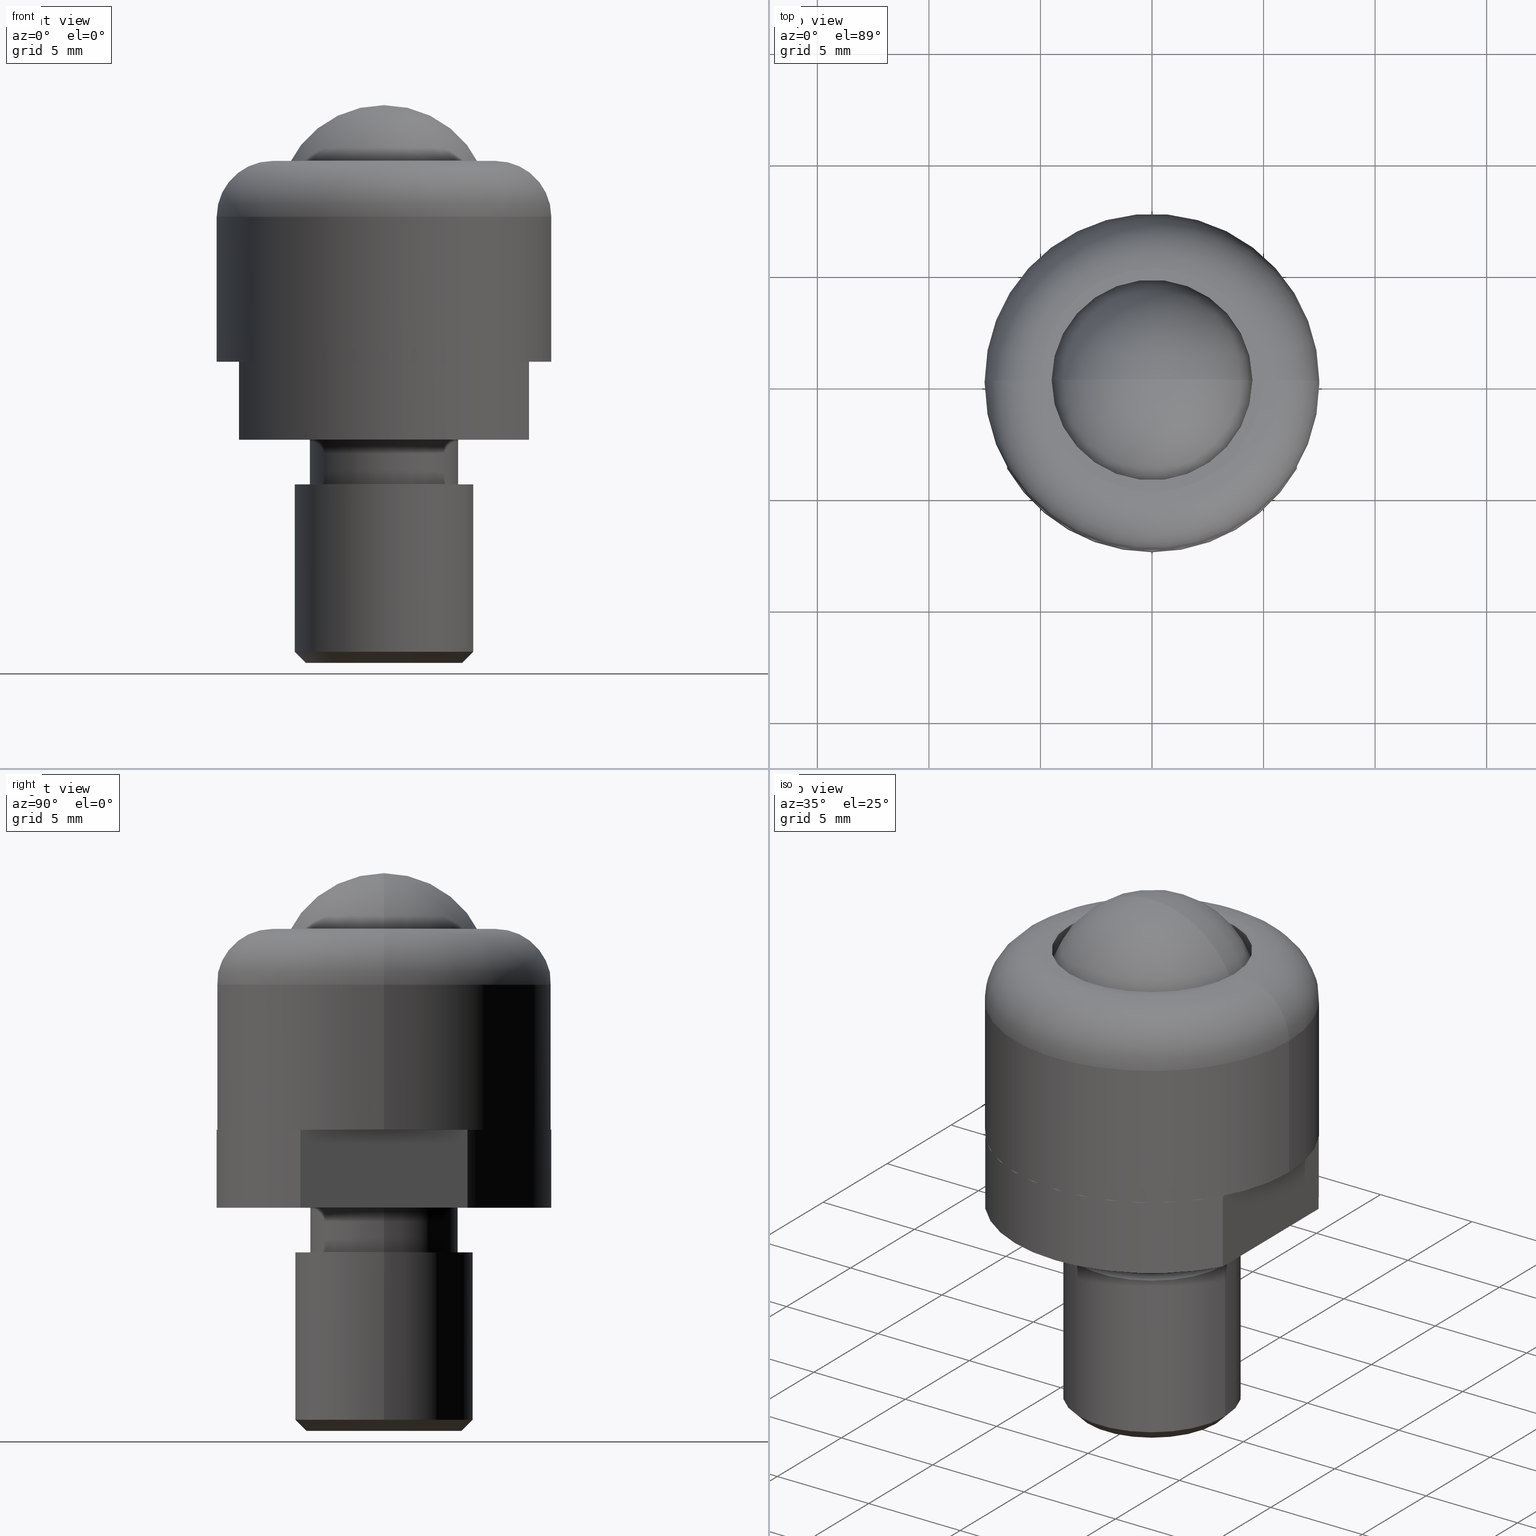
[diagram: canonical four-view strip — front | top / right | iso, engineering-drawing reading convention]
A machine part, canonical four-view strip (front | top / right | iso — engineering-drawing reading convention). The complete STEP part file that produces these views, byte-faithful:
ISO-10303-21;
HEADER;
FILE_DESCRIPTION (( 'STEP AP214' ),
    '1' );
FILE_NAME ('TM_337_P10BV_SS.STEP',
    '2016-05-09T04:17:21',
    ( '' ),
    ( '' ),
    'SwSTEP 2.0',
    'SolidWorks 2015',
    '' );
FILE_SCHEMA (( 'AUTOMOTIVE_DESIGN' ));
ENDSEC;

DATA;
#1 = PRESENTATION_LAYER_ASSIGNMENT (  '', '', ( #908 ) ) ;
#2 = FACE_OUTER_BOUND ( 'NONE', #86, .T. ) ;
#3 = DIRECTION ( 'NONE',  ( -1.000000000000000000, 0.0000000000000000000, 0.0000000000000000000 ) ) ;
#4 = CARTESIAN_POINT ( 'NONE',  ( 0.0000000000000000000, 0.0000000000000000000, -5.500000000000000000 ) ) ;
#5 = AXIS2_PLACEMENT_3D ( 'NONE', #740, #109, #263 ) ;
#6 = DIRECTION ( 'NONE',  ( 0.0000000000000000000, 0.0000000000000000000, -1.000000000000000000 ) ) ;
#7 = LINE ( 'NONE', #750, #355 ) ;
#8 =( NAMED_UNIT ( * ) PLANE_ANGLE_UNIT ( ) SI_UNIT ( $, .RADIAN. ) );
#9 = DIRECTION ( 'NONE',  ( -1.000000000000000000, 0.0000000000000000000, 0.0000000000000000000 ) ) ;
#10 =( NAMED_UNIT ( * ) PLANE_ANGLE_UNIT ( ) SI_UNIT ( $, .RADIAN. ) );
#11 = LINE ( 'NONE', #314, #382 ) ;
#12 = AXIS2_PLACEMENT_3D ( 'NONE', #4, #527, #76 ) ;
#13 = ORIENTED_EDGE ( 'NONE', *, *, #837, .F. ) ;
#14 = CARTESIAN_POINT ( 'NONE',  ( 0.0000000000000000000, 0.0000000000000000000, -12.99999999999986100 ) ) ;
#15 = CARTESIAN_POINT ( 'NONE',  ( 0.0000000000000000000, 0.0000000000000000000, 0.0000000000000000000 ) ) ;
#16 = FACE_OUTER_BOUND ( 'NONE', #318, .T. ) ;
#17 = CARTESIAN_POINT ( 'NONE',  ( -6.500000000000000000, 3.741657386773945300, -3.499999999999950300 ) ) ;
#18 = SURFACE_SIDE_STYLE ('',( #618 ) ) ;
#19 = MECHANICAL_DESIGN_GEOMETRIC_PRESENTATION_REPRESENTATION (  '', ( #867 ), #69 ) ;
#20 = EDGE_CURVE ( 'NONE', #108, #213, #869, .T. ) ;
#21 =( LENGTH_UNIT ( ) NAMED_UNIT ( * ) SI_UNIT ( .MILLI., .METRE. ) );
#22 = CARTESIAN_POINT ( 'NONE',  ( 0.0000000000000000000, 0.0000000000000000000, 0.0000000000000000000 ) ) ;
#23 = ORIENTED_EDGE ( 'NONE', *, *, #467, .T. ) ;
#24 = CARTESIAN_POINT ( 'NONE',  ( -6.500000000000000000, 3.741657386773940000, -1000.000000000000000 ) ) ;
#25 = CYLINDRICAL_SURFACE ( 'NONE', #921, 4.000000000000000000 ) ;
#26 = PRODUCT_DEFINITION_SHAPE ( 'NONE', 'NONE',  #565 ) ;
#27 = UNCERTAINTY_MEASURE_WITH_UNIT (LENGTH_MEASURE( 1.000000000000000100E-005 ), #606, 'distance_accuracy_value', 'NONE');
#28 = CARTESIAN_POINT ( 'NONE',  ( 6.500000000000000000, -3.741657386773955100, -3.499999999999950300 ) ) ;
#29 = CARTESIAN_POINT ( 'NONE',  ( 2.916190190469635100E-016, 0.0000000000000000000, 11.50000000000000000 ) ) ;
#30 = CARTESIAN_POINT ( 'NONE',  ( 3.500000000000000000, 0.0000000000000000000, -13.49999999999986100 ) ) ;
#31 = COLOUR_RGB ( '',0.7921568627450980000, 0.8196078431372548800, 0.9333333333333333500 ) ;
#32 = CARTESIAN_POINT ( 'NONE',  ( 3.323500000000000100, 4.070113636966935000E-016, -5.500000000000000000 ) ) ;
#33 = CARTESIAN_POINT ( 'NONE',  ( 0.0000000000000000000, 0.0000000000000000000, -13.49999999999986100 ) ) ;
#34 = LINE ( 'NONE', #831, #777 ) ;
#35 = DIRECTION ( 'NONE',  ( 0.0000000000000000000, 0.0000000000000000000, -1.000000000000000000 ) ) ;
#36 = CARTESIAN_POINT ( 'NONE',  ( 0.0000000000000000000, 0.0000000000000000000, 6.500000000000000000 ) ) ;
#37 = DIRECTION ( 'NONE',  ( 0.0000000000000000000, 0.0000000000000000000, 1.000000000000000000 ) ) ;
#38 = ORIENTED_EDGE ( 'NONE', *, *, #751, .T. ) ;
#39 = AXIS2_PLACEMENT_3D ( 'NONE', #586, #370, #654 ) ;
#40 = EDGE_CURVE ( 'NONE', #41, #645, #319, .T. ) ;
#41 = VERTEX_POINT ( 'NONE', #863 ) ;
#42 =( NAMED_UNIT ( * ) SI_UNIT ( $, .STERADIAN. ) SOLID_ANGLE_UNIT ( ) );
#43 = ORIENTED_EDGE ( 'NONE', *, *, #129, .F. ) ;
#44 = DIRECTION ( 'NONE',  ( -0.0000000000000000000, -0.0000000000000000000, -1.000000000000000000 ) ) ;
#45 = PRODUCT_CONTEXT ( 'NONE', #663, 'mechanical' ) ;
#46 = FACE_OUTER_BOUND ( 'NONE', #865, .T. ) ;
#47 = EDGE_LOOP ( 'NONE', ( #890, #312, #384, #436 ) ) ;
#48 = ORIENTED_EDGE ( 'NONE', *, *, #932, .F. ) ;
#49 = ORIENTED_EDGE ( 'NONE', *, *, #687, .F. ) ;
#50 = PRESENTATION_STYLE_ASSIGNMENT (( #502 ) ) ;
#51 = PRODUCT_DEFINITION_FORMATION_WITH_SPECIFIED_SOURCE ( 'ANY', '', #938, .NOT_KNOWN. ) ;
#52 = FACE_BOUND ( 'NONE', #930, .T. ) ;
#53 = EDGE_CURVE ( 'NONE', #645, #41, #118, .T. ) ;
#54 = MECHANICAL_DESIGN_GEOMETRIC_PRESENTATION_REPRESENTATION (  '', ( #908 ), #102 ) ;
#55 = CIRCLE ( 'NONE', #914, 5.000000000000000000 ) ;
#56 = AXIS2_PLACEMENT_3D ( 'NONE', #33, #183, #691 ) ;
#57 = PRODUCT ( 'pan', 'pan', '', ( #415 ) ) ;
#58 = ADVANCED_FACE ( 'NONE', ( #493 ), #946, .T. ) ;
#59 = DIRECTION ( 'NONE',  ( 1.000000000000000000, 0.0000000000000000000, 0.0000000000000000000 ) ) ;
#60 = VERTEX_POINT ( 'NONE', #132 ) ;
#61 = AXIS2_PLACEMENT_3D ( 'NONE', #74, #531, #727 ) ;
#62 = DIRECTION ( 'NONE',  ( 1.000000000000000000, 0.0000000000000000000, 0.0000000000000000000 ) ) ;
#63 = EDGE_LOOP ( 'NONE', ( #68, #814, #607, #408 ) ) ;
#64 = ORIENTED_EDGE ( 'NONE', *, *, #416, .T. ) ;
#65 = CARTESIAN_POINT ( 'NONE',  ( 0.0000000000000000000, 0.0000000000000000000, 0.0000000000000000000 ) ) ;
#66 = DIRECTION ( 'NONE',  ( 0.0000000000000000000, 0.0000000000000000000, -1.000000000000000000 ) ) ;
#67 = ADVANCED_BREP_SHAPE_REPRESENTATION ( '', ( #440, #850 ), #147 ) ;
#68 = ORIENTED_EDGE ( 'NONE', *, *, #518, .T. ) ;
#69 =( GEOMETRIC_REPRESENTATION_CONTEXT ( 3 ) GLOBAL_UNCERTAINTY_ASSIGNED_CONTEXT ( ( #546 ) ) GLOBAL_UNIT_ASSIGNED_CONTEXT ( ( #206, #877, #353 ) ) REPRESENTATION_CONTEXT ( 'NONE', 'WORKASPACE' ) );
#70 = CIRCLE ( 'NONE', #771, 7.500000000000000000 ) ;
#71 = EDGE_CURVE ( 'NONE', #609, #414, #94, .T. ) ;
#72 = LINE ( 'NONE', #349, #825 ) ;
#73 = DIRECTION ( 'NONE',  ( -1.000000000000000000, 0.0000000000000000000, 0.0000000000000000000 ) ) ;
#74 = CARTESIAN_POINT ( 'NONE',  ( 7.500000000000000000, 0.0000000000000000000, 0.0000000000000000000 ) ) ;
#75 =( NAMED_UNIT ( * ) SI_UNIT ( $, .STERADIAN. ) SOLID_ANGLE_UNIT ( ) );
#76 = DIRECTION ( 'NONE',  ( -1.000000000000000000, 0.0000000000000000000, 0.0000000000000000000 ) ) ;
#77 = ORIENTED_EDGE ( 'NONE', *, *, #686, .T. ) ;
#78 = ADVANCED_FACE ( 'NONE', ( #295 ), #280, .T. ) ;
#79 = CARTESIAN_POINT ( 'NONE',  ( 4.000000000000000000, 4.898587196589412800E-016, -5.499999999999899600 ) ) ;
#80 = DIRECTION ( 'NONE',  ( 0.0000000000000000000, 0.0000000000000000000, 1.000000000000000000 ) ) ;
#81 = EDGE_LOOP ( 'NONE', ( #664, #812, #480, #139 ) ) ;
#82 = AXIS2_PLACEMENT_3D ( 'NONE', #501, #575, #859 ) ;
#83 = EDGE_CURVE ( 'NONE', #643, #694, #468, .T. ) ;
#84 = CARTESIAN_POINT ( 'NONE',  ( 0.0000000000000000000, 0.0000000000000000000, -13.49999999999986100 ) ) ;
#85 = ITEM_DEFINED_TRANSFORMATION ( 'NONE', 'NONE', #274,  #850 ) ;
#86 = EDGE_LOOP ( 'NONE', ( #535, #563, #855, #48 ) ) ;
#87 = DIRECTION ( 'NONE',  ( -1.000000000000000000, 0.0000000000000000000, 0.0000000000000000000 ) ) ;
#88 = PRESENTATION_STYLE_ASSIGNMENT (( #463 ) ) ;
#89 = ORIENTED_EDGE ( 'NONE', *, *, #848, .F. ) ;
#90 = DIRECTION ( 'NONE',  ( 0.0000000000000000000, 0.0000000000000000000, -1.000000000000000000 ) ) ;
#91 = DIRECTION ( 'NONE',  ( -0.0000000000000000000, 1.000000000000000000, -0.0000000000000000000 ) ) ;
#92 = SURFACE_STYLE_USAGE ( .BOTH. , #18 ) ;
#93 = EDGE_LOOP ( 'NONE', ( #23, #322, #391, #743 ) ) ;
#94 = CIRCLE ( 'NONE', #39, 4.762499999999999300 ) ;
#95 = DIRECTION ( 'NONE',  ( -1.000000000000000000, 0.0000000000000000000, 0.0000000000000000000 ) ) ;
#96 = VERTEX_POINT ( 'NONE', #224 ) ;
#97 = CLOSED_SHELL ( 'NONE', ( #854, #377, #730, #524, #448, #482, #898, #231, #172, #937, #897, #587, #528 ) ) ;
#98 = PRODUCT_RELATED_PRODUCT_CATEGORY ( 'part', '', ( #938 ) ) ;
#99 = ADVANCED_BREP_SHAPE_REPRESENTATION ( '', ( #844, #850 ), #797 ) ;
#100 = ORIENTED_EDGE ( 'NONE', *, *, #320, .T. ) ;
#101 = EDGE_CURVE ( 'NONE', #839, #516, #72, .T. ) ;
#102 =( GEOMETRIC_REPRESENTATION_CONTEXT ( 3 ) GLOBAL_UNCERTAINTY_ASSIGNED_CONTEXT ( ( #27 ) ) GLOBAL_UNIT_ASSIGNED_CONTEXT ( ( #606, #660, #803 ) ) REPRESENTATION_CONTEXT ( 'NONE', 'WORKASPACE' ) );
#103 = DIRECTION ( 'NONE',  ( 0.0000000000000000000, 0.0000000000000000000, -1.000000000000000000 ) ) ;
#104 = DIRECTION ( 'NONE',  ( -1.000000000000000000, 0.0000000000000000000, 0.0000000000000000000 ) ) ;
#105 = PRODUCT_DEFINITION_CONTEXT ( 'detailed design', #631, 'design' ) ;
#106 = DIRECTION ( 'NONE',  ( -1.000000000000000000, 0.0000000000000000000, 0.0000000000000000000 ) ) ;
#107 = AXIS2_PLACEMENT_3D ( 'NONE', #168, #612, #95 ) ;
#108 = VERTEX_POINT ( 'NONE', #439 ) ;
#109 = DIRECTION ( 'NONE',  ( 0.0000000000000000000, 0.0000000000000000000, -1.000000000000000000 ) ) ;
#110 = DIRECTION ( 'NONE',  ( -1.000000000000000000, 0.0000000000000000000, 0.0000000000000000000 ) ) ;
#111 = DIRECTION ( 'NONE',  ( 0.0000000000000000000, 0.0000000000000000000, 1.000000000000000000 ) ) ;
#112 = AXIS2_PLACEMENT_3D ( 'NONE', #886, #306, #9 ) ;
#113 = VECTOR ( 'NONE', #605, 1000.000000000000000 ) ;
#114 = DIRECTION ( 'NONE',  ( 0.0000000000000000000, 0.0000000000000000000, -1.000000000000000000 ) ) ;
#115 = CARTESIAN_POINT ( 'NONE',  ( 6.799999999999999800, 8.327598234202001100E-016, 0.0000000000000000000 ) ) ;
#116 = ORIENTED_EDGE ( 'NONE', *, *, #337, .T. ) ;
#117 = APPLICATION_PROTOCOL_DEFINITION ( 'draft international standard', 'automotive_design', 1998, #631 ) ;
#118 = CIRCLE ( 'NONE', #884, 3.323500000001154800 ) ;
#119 = AXIS2_PLACEMENT_3D ( 'NONE', #941, #875, #719 ) ;
#120 =( GEOMETRIC_REPRESENTATION_CONTEXT ( 3 ) GLOBAL_UNCERTAINTY_ASSIGNED_CONTEXT ( ( #950 ) ) GLOBAL_UNIT_ASSIGNED_CONTEXT ( ( #21, #815, #551 ) ) REPRESENTATION_CONTEXT ( 'NONE', 'WORKASPACE' ) );
#121 = EDGE_CURVE ( 'NONE', #213, #108, #846, .T. ) ;
#122 = ORIENTED_EDGE ( 'NONE', *, *, #40, .T. ) ;
#123 = APPLICATION_PROTOCOL_DEFINITION ( 'draft international standard', 'automotive_design', 1998, #656 ) ;
#124 = VECTOR ( 'NONE', #479, 1000.000000000000000 ) ;
#125 = CYLINDRICAL_SURFACE ( 'NONE', #653, 3.323500000001154800 ) ;
#126 = ADVANCED_FACE ( 'NONE', ( #650 ), #649, .T. ) ;
#127 = CARTESIAN_POINT ( 'NONE',  ( 0.0000000000000000000, 0.0000000000000000000, -3.500000000000000000 ) ) ;
#128 = AXIS2_PLACEMENT_3D ( 'NONE', #296, #642, #351 ) ;
#129 = EDGE_CURVE ( 'NONE', #874, #562, #251, .T. ) ;
#130 = SURFACE_SIDE_STYLE ('',( #824 ) ) ;
#131 = LINE ( 'NONE', #313, #862 ) ;
#132 = CARTESIAN_POINT ( 'NONE',  ( 6.500000000000000000, 3.741657386773960000, -3.499999999999950300 ) ) ;
#133 = VERTEX_POINT ( 'NONE', #665 ) ;
#134 = DIRECTION ( 'NONE',  ( -0.0000000000000000000, -0.0000000000000000000, -1.000000000000000000 ) ) ;
#135 = CYLINDRICAL_SURFACE ( 'NONE', #581, 6.799999999999999800 ) ;
#136 = FILL_AREA_STYLE ('',( #424 ) ) ;
#137 = VERTEX_POINT ( 'NONE', #79 ) ;
#138 = EDGE_LOOP ( 'NONE', ( #305, #282, #270, #13 ) ) ;
#139 = ORIENTED_EDGE ( 'NONE', *, *, #277, .T. ) ;
#140 = FACE_OUTER_BOUND ( 'NONE', #947, .T. ) ;
#141 = PRODUCT_DEFINITION_FORMATION_WITH_SPECIFIED_SOURCE ( 'ANY', '', #706, .NOT_KNOWN. ) ;
#142 = AXIS2_PLACEMENT_3D ( 'NONE', #949, #726, #59 ) ;
#143 = CYLINDRICAL_SURFACE ( 'NONE', #519, 6.799999999999999800 ) ;
#144 = DIRECTION ( 'NONE',  ( 0.0000000000000000000, 0.0000000000000000000, 1.000000000000000000 ) ) ;
#145 = PRODUCT_DEFINITION_SHAPE ( 'NONE', 'NONE',  #647 ) ;
#146 = ADVANCED_FACE ( 'NONE', ( #52, #441 ), #529, .T. ) ;
#147 =( GEOMETRIC_REPRESENTATION_CONTEXT ( 3 ) GLOBAL_UNCERTAINTY_ASSIGNED_CONTEXT ( ( #799 ) ) GLOBAL_UNIT_ASSIGNED_CONTEXT ( ( #808, #722, #233 ) ) REPRESENTATION_CONTEXT ( 'NONE', 'WORKASPACE' ) );
#148 = DIRECTION ( 'NONE',  ( 0.0000000000000000000, 0.0000000000000000000, -1.000000000000000000 ) ) ;
#149 = DIRECTION ( 'NONE',  ( -1.000000000000000000, 0.0000000000000000000, 0.0000000000000000000 ) ) ;
#150 = APPLICATION_CONTEXT ( 'automotive_design' ) ;
#151 = ADVANCED_FACE ( 'NONE', ( #796 ), #25, .T. ) ;
#152 = AXIS2_PLACEMENT_3D ( 'NONE', #822, #900, #104 ) ;
#153 = CARTESIAN_POINT ( 'NONE',  ( 6.500000000000000000, -3.741657386773955100, -1000.000000000000000 ) ) ;
#154 = SURFACE_SIDE_STYLE ('',( #307 ) ) ;
#155 = FACE_OUTER_BOUND ( 'NONE', #724, .T. ) ;
#156 = CARTESIAN_POINT ( 'NONE',  ( -4.498888751680794900, 0.0000000000000000000, 0.0000000000000000000 ) ) ;
#157 = ORIENTED_EDGE ( 'NONE', *, *, #166, .F. ) ;
#158 = AXIS2_PLACEMENT_3D ( 'NONE', #670, #241, #741 ) ;
#159 = VECTOR ( 'NONE', #66, 1000.000000000000000 ) ;
#160 =( NAMED_UNIT ( * ) SI_UNIT ( $, .STERADIAN. ) SOLID_ANGLE_UNIT ( ) );
#161 = ORIENTED_EDGE ( 'NONE', *, *, #515, .F. ) ;
#162 = CARTESIAN_POINT ( 'NONE',  ( 0.0000000000000000000, 0.0000000000000000000, 0.0000000000000000000 ) ) ;
#163 = LINE ( 'NONE', #554, #124 ) ;
#164 = AXIS2_PLACEMENT_3D ( 'NONE', #222, #861, #228 ) ;
#165 = AXIS2_PLACEMENT_3D ( 'NONE', #265, #271, #764 ) ;
#166 = EDGE_CURVE ( 'NONE', #694, #762, #676, .T. ) ;
#167 = ADVANCED_FACE ( 'NONE', ( #419 ), #755, .T. ) ;
#168 = CARTESIAN_POINT ( 'NONE',  ( 0.0000000000000000000, 0.0000000000000000000, -13.49999999999986100 ) ) ;
#169 = FACE_OUTER_BOUND ( 'NONE', #639, .T. ) ;
#170 = SHAPE_REPRESENTATION ( 'housing', ( #850 ), #147 ) ;
#171 = CARTESIAN_POINT ( 'NONE',  ( -5.000000000000000000, 0.0000000000000000000, 6.500000000000000000 ) ) ;
#172 = ADVANCED_FACE ( 'NONE', ( #225, #588 ), #659, .F. ) ;
#173 = ORIENTED_EDGE ( 'NONE', *, *, #795, .F. ) ;
#174 = CIRCLE ( 'NONE', #311, 1.800000000000000000 ) ;
#175 = CARTESIAN_POINT ( 'NONE',  ( 7.500000000000000000, 9.184850993605147900E-016, 6.500000000000000000 ) ) ;
#176 = DIRECTION ( 'NONE',  ( -0.0000000000000000000, -1.000000000000000000, -0.0000000000000000000 ) ) ;
#177 = CARTESIAN_POINT ( 'NONE',  ( 0.0000000000000000000, 0.0000000000000000000, -3.499999999999950300 ) ) ;
#178 = DIRECTION ( 'NONE',  ( -1.000000000000000000, 0.0000000000000000000, 0.0000000000000000000 ) ) ;
#179 = ADVANCED_BREP_SHAPE_REPRESENTATION ( '', ( #411, #850 ), #397 ) ;
#180 = CARTESIAN_POINT ( 'NONE',  ( 3.500000000000000000, 0.0000000000000000000, -13.49999999999986100 ) ) ;
#181 = LINE ( 'NONE', #834, #556 ) ;
#182 = DIRECTION ( 'NONE',  ( 0.0000000000000000000, 0.0000000000000000000, -1.000000000000000000 ) ) ;
#183 = DIRECTION ( 'NONE',  ( 0.0000000000000000000, 0.0000000000000000000, 1.000000000000000000 ) ) ;
#184 = AXIS2_PLACEMENT_3D ( 'NONE', #873, #520, #73 ) ;
#185 = EDGE_CURVE ( 'NONE', #292, #657, #202, .T. ) ;
#186 = DIRECTION ( 'NONE',  ( 1.000000000000000000, 0.0000000000000000000, 0.0000000000000000000 ) ) ;
#187 = APPLICATION_CONTEXT ( 'automotive_design' ) ;
#188 = FACE_OUTER_BOUND ( 'NONE', #93, .T. ) ;
#189 = ORIENTED_EDGE ( 'NONE', *, *, #732, .F. ) ;
#190 = VERTEX_POINT ( 'NONE', #802 ) ;
#191 = ORIENTED_EDGE ( 'NONE', *, *, #413, .T. ) ;
#192 = DIRECTION ( 'NONE',  ( 0.0000000000000000000, 0.0000000000000000000, -1.000000000000000000 ) ) ;
#193 = PRODUCT_CONTEXT ( 'NONE', #150, 'mechanical' ) ;
#194 = ORIENTED_EDGE ( 'NONE', *, *, #467, .F. ) ;
#195 = LINE ( 'NONE', #115, #365 ) ;
#196 = DIRECTION ( 'NONE',  ( 0.0000000000000000000, 0.0000000000000000000, -1.000000000000000000 ) ) ;
#197 = TOROIDAL_SURFACE ( 'NONE', #279, 5.000000000000000000, 1.800000000000000000 ) ;
#198 = ORIENTED_EDGE ( 'NONE', *, *, #940, .F. ) ;
#199 = PRODUCT_RELATED_PRODUCT_CATEGORY ( 'part', '', ( #706 ) ) ;
#200 = AXIS2_PLACEMENT_3D ( 'NONE', #514, #651, #287 ) ;
#201 = UNCERTAINTY_MEASURE_WITH_UNIT (LENGTH_MEASURE( 1.000000000000000100E-005 ), #387, 'distance_accuracy_value', 'NONE');
#202 = CIRCLE ( 'NONE', #12, 3.323500000000000100 ) ;
#203 = STYLED_ITEM ( 'NONE', ( #88 ), #67 ) ;
#204 = AXIS2_PLACEMENT_3D ( 'NONE', #171, #254, #754 ) ;
#205 = CIRCLE ( 'NONE', #5, 4.000000000000000000 ) ;
#206 =( LENGTH_UNIT ( ) NAMED_UNIT ( * ) SI_UNIT ( .MILLI., .METRE. ) );
#207 = ORIENTED_EDGE ( 'NONE', *, *, #780, .F. ) ;
#208 = PRODUCT ( 'TM_337_P10BV_SS', 'TM_337_P10BV_SS', '', ( #227 ) ) ;
#209 = ORIENTED_EDGE ( 'NONE', *, *, #515, .T. ) ;
#210 = CIRCLE ( 'NONE', #358, 7.500000000000000000 ) ;
#211 = DIRECTION ( 'NONE',  ( 0.0000000000000000000, 0.0000000000000000000, -1.000000000000000000 ) ) ;
#212 = AXIS2_PLACEMENT_3D ( 'NONE', #14, #534, #87 ) ;
#213 = VERTEX_POINT ( 'NONE', #594 ) ;
#214 = CARTESIAN_POINT ( 'NONE',  ( 0.0000000000000000000, 0.0000000000000000000, -3.500000000000000000 ) ) ;
#215 = EDGE_LOOP ( 'NONE', ( #782, #533 ) ) ;
#216 = CIRCLE ( 'NONE', #252, 4.498888751680794900 ) ;
#217 = AXIS2_PLACEMENT_3D ( 'NONE', #590, #243, #603 ) ;
#218 = VERTEX_POINT ( 'NONE', #589 ) ;
#219 = CARTESIAN_POINT ( 'NONE',  ( 2.916190190469635100E-016, 0.0000000000000000000, 1.975000000000000100 ) ) ;
#220 = AXIS2_PLACEMENT_3D ( 'NONE', #912, #828, #557 ) ;
#221 = EDGE_LOOP ( 'NONE', ( #404, #490, #38, #820 ) ) ;
#222 = CARTESIAN_POINT ( 'NONE',  ( 0.0000000000000000000, 0.0000000000000000000, 6.500000000000000000 ) ) ;
#223 = EDGE_CURVE ( 'NONE', #762, #510, #774, .T. ) ;
#224 = CARTESIAN_POINT ( 'NONE',  ( -6.500000000000000000, -3.741657386773940000, 0.0000000000000000000 ) ) ;
#225 = FACE_BOUND ( 'NONE', #500, .T. ) ;
#226 = CARTESIAN_POINT ( 'NONE',  ( 0.0000000000000000000, 0.0000000000000000000, -13.49999999999986100 ) ) ;
#227 = PRODUCT_CONTEXT ( 'NONE', #734, 'mechanical' ) ;
#228 = DIRECTION ( 'NONE',  ( -1.000000000000000000, 0.0000000000000000000, 0.0000000000000000000 ) ) ;
#229 = CARTESIAN_POINT ( 'NONE',  ( -4.000000000000000000, 4.898587196589412800E-016, -12.99999999999986100 ) ) ;
#230 = FILL_AREA_STYLE_COLOUR ( '', #804 ) ;
#231 = ADVANCED_FACE ( 'NONE', ( #2 ), #935, .T. ) ;
#232 = CIRCLE ( 'NONE', #852, 7.500000000000000000 ) ;
#233 =( NAMED_UNIT ( * ) SI_UNIT ( $, .STERADIAN. ) SOLID_ANGLE_UNIT ( ) );
#234 = APPLICATION_PROTOCOL_DEFINITION ( 'draft international standard', 'automotive_design', 1998, #734 ) ;
#235 = AXIS2_PLACEMENT_3D ( 'NONE', #422, #856, #786 ) ;
#236 = EDGE_CURVE ( 'NONE', #643, #510, #394, .T. ) ;
#237 = ORIENTED_EDGE ( 'NONE', *, *, #20, .F. ) ;
#238 =( NAMED_UNIT ( * ) PLANE_ANGLE_UNIT ( ) SI_UNIT ( $, .RADIAN. ) );
#239 = ORIENTED_EDGE ( 'NONE', *, *, #952, .T. ) ;
#240 = FACE_OUTER_BOUND ( 'NONE', #513, .T. ) ;
#241 = DIRECTION ( 'NONE',  ( 0.0000000000000000000, 0.0000000000000000000, -1.000000000000000000 ) ) ;
#242 = VERTEX_POINT ( 'NONE', #229 ) ;
#243 = DIRECTION ( 'NONE',  ( 0.0000000000000000000, 0.0000000000000000000, 1.000000000000000000 ) ) ;
#244 = DIRECTION ( 'NONE',  ( 1.000000000000000000, 0.0000000000000000000, 0.0000000000000000000 ) ) ;
#245 = ORIENTED_EDGE ( 'NONE', *, *, #731, .T. ) ;
#246 = CARTESIAN_POINT ( 'NONE',  ( 0.0000000000000000000, 0.0000000000000000000, 0.0000000000000000000 ) ) ;
#247 = COLOUR_RGB ( '',0.7921568627450980000, 0.8196078431372548800, 0.9333333333333333500 ) ;
#248 = DIRECTION ( 'NONE',  ( -1.000000000000000000, 0.0000000000000000000, 0.0000000000000000000 ) ) ;
#249 = CARTESIAN_POINT ( 'NONE',  ( 0.0000000000000000000, 0.0000000000000000000, 8.300000000000000700 ) ) ;
#250 = EDGE_LOOP ( 'NONE', ( #194, #401 ) ) ;
#251 = LINE ( 'NONE', #153, #635 ) ;
#252 = AXIS2_PLACEMENT_3D ( 'NONE', #791, #366, #870 ) ;
#253 = CARTESIAN_POINT ( 'NONE',  ( -6.500000000000000000, 3.741657386773945300, 0.0000000000000000000 ) ) ;
#254 = DIRECTION ( 'NONE',  ( -0.0000000000000000000, -1.000000000000000000, -0.0000000000000000000 ) ) ;
#255 = PRESENTATION_LAYER_ASSIGNMENT (  '', '', ( #203 ) ) ;
#256 = ORIENTED_EDGE ( 'NONE', *, *, #101, .T. ) ;
#257 = PLANE ( 'NONE',  #805 ) ;
#258 = TOROIDAL_SURFACE ( 'NONE', #705, 5.000000000000000000, 1.800000000000000000 ) ;
#259 = DIRECTION ( 'NONE',  ( 0.7071067811865470200, 0.0000000000000000000, 0.7071067811865480200 ) ) ;
#260 = AXIS2_PLACEMENT_3D ( 'NONE', #680, #827, #555 ) ;
#261 = ORIENTED_EDGE ( 'NONE', *, *, #71, .T. ) ;
#262 = DIRECTION ( 'NONE',  ( -1.000000000000000000, 0.0000000000000000000, 0.0000000000000000000 ) ) ;
#263 = DIRECTION ( 'NONE',  ( -1.000000000000000000, 0.0000000000000000000, 0.0000000000000000000 ) ) ;
#264 = ORIENTED_EDGE ( 'NONE', *, *, #372, .T. ) ;
#265 = CARTESIAN_POINT ( 'NONE',  ( 0.0000000000000000000, 0.0000000000000000000, 6.500000000000000000 ) ) ;
#266 = EDGE_LOOP ( 'NONE', ( #843, #868 ) ) ;
#267 =( REPRESENTATION_RELATIONSHIP ('NONE','NONE', #798, #495 ) REPRESENTATION_RELATIONSHIP_WITH_TRANSFORMATION ( #432 )SHAPE_REPRESENTATION_RELATIONSHIP( ) );
#268 = AXIS2_PLACEMENT_3D ( 'NONE', #729, #879, #149 ) ;
#269 = ITEM_DEFINED_TRANSFORMATION ( 'NONE', 'NONE', #317,  #850 ) ;
#270 = ORIENTED_EDGE ( 'NONE', *, *, #906, .T. ) ;
#271 = DIRECTION ( 'NONE',  ( 0.0000000000000000000, 0.0000000000000000000, -1.000000000000000000 ) ) ;
#272 = CARTESIAN_POINT ( 'NONE',  ( 0.0000000000000000000, 0.0000000000000000000, 0.0000000000000000000 ) ) ;
#273 = APPLICATION_PROTOCOL_DEFINITION ( 'draft international standard', 'automotive_design', 1998, #187 ) ;
#274 = AXIS2_PLACEMENT_3D ( 'NONE', #246, #536, #374 ) ;
#275 = ORIENTED_EDGE ( 'NONE', *, *, #121, .F. ) ;
#276 =( LENGTH_UNIT ( ) NAMED_UNIT ( * ) SI_UNIT ( .MILLI., .METRE. ) );
#277 = EDGE_CURVE ( 'NONE', #698, #242, #573, .T. ) ;
#278 = CIRCLE ( 'NONE', #819, 6.799999999999999800 ) ;
#279 = AXIS2_PLACEMENT_3D ( 'NONE', #745, #35, #110 ) ;
#280 = CYLINDRICAL_SURFACE ( 'NONE', #235, 7.500000000000000000 ) ;
#281 = EDGE_CURVE ( 'NONE', #455, #190, #725, .T. ) ;
#282 = ORIENTED_EDGE ( 'NONE', *, *, #286, .T. ) ;
#283 = PRODUCT_DEFINITION_SHAPE ( 'NONE', 'NONE',  #955 ) ;
#284 = DIRECTION ( 'NONE',  ( 1.000000000000000000, 0.0000000000000000000, 0.0000000000000000000 ) ) ;
#285 = ORIENTED_EDGE ( 'NONE', *, *, #795, .T. ) ;
#286 = EDGE_CURVE ( 'NONE', #455, #662, #174, .T. ) ;
#287 = DIRECTION ( 'NONE',  ( -1.000000000000000000, 0.0000000000000000000, 0.0000000000000000000 ) ) ;
#288 = SHAPE_DEFINITION_REPRESENTATION ( #145, #316 ) ;
#289 = COLOUR_RGB ( '',0.7921568627450980000, 0.8196078431372548800, 0.9333333333333333500 ) ;
#290 = DIRECTION ( 'NONE',  ( 0.0000000000000000000, 0.0000000000000000000, 1.000000000000000000 ) ) ;
#291 = ORIENTED_EDGE ( 'NONE', *, *, #236, .T. ) ;
#292 = VERTEX_POINT ( 'NONE', #889 ) ;
#293 = CARTESIAN_POINT ( 'NONE',  ( 0.0000000000000000000, 0.0000000000000000000, -3.500000000000000000 ) ) ;
#294 = ORIENTED_EDGE ( 'NONE', *, *, #129, .T. ) ;
#295 = FACE_OUTER_BOUND ( 'NONE', #63, .T. ) ;
#296 = CARTESIAN_POINT ( 'NONE',  ( 0.0000000000000000000, 0.0000000000000000000, 0.0000000000000000000 ) ) ;
#297 = VERTEX_POINT ( 'NONE', #816 ) ;
#298 = DIRECTION ( 'NONE',  ( 0.0000000000000000000, -1.000000000000000000, 0.0000000000000000000 ) ) ;
#299 = CARTESIAN_POINT ( 'NONE',  ( 0.0000000000000000000, 0.0000000000000000000, 0.0000000000000000000 ) ) ;
#300 = SHAPE_REPRESENTATION_RELATIONSHIP ( 'NONE' , 'NONE' ,  #495, #179 ) ;
#301 = MECHANICAL_DESIGN_GEOMETRIC_PRESENTATION_REPRESENTATION (  '', ( #203 ), #348 ) ;
#302 = ORIENTED_EDGE ( 'NONE', *, *, #368, .F. ) ;
#303 = ORIENTED_EDGE ( 'NONE', *, *, #121, .T. ) ;
#304 = AXIS2_PLACEMENT_3D ( 'NONE', #466, #759, #178 ) ;
#305 = ORIENTED_EDGE ( 'NONE', *, *, #281, .F. ) ;
#306 = DIRECTION ( 'NONE',  ( 0.0000000000000000000, 0.0000000000000000000, -1.000000000000000000 ) ) ;
#307 = SURFACE_STYLE_FILL_AREA ( #896 ) ;
#308 = DIRECTION ( 'NONE',  ( 0.0000000000000000000, 0.0000000000000000000, -1.000000000000000000 ) ) ;
#309 = LINE ( 'NONE', #460, #113 ) ;
#310 = DIRECTION ( 'NONE',  ( 0.0000000000000000000, 0.0000000000000000000, 1.000000000000000000 ) ) ;
#311 = AXIS2_PLACEMENT_3D ( 'NONE', #385, #895, #461 ) ;
#312 = ORIENTED_EDGE ( 'NONE', *, *, #636, .T. ) ;
#313 = CARTESIAN_POINT ( 'NONE',  ( 3.323500000001154800, 4.070113636967642500E-016, 0.0000000000000000000 ) ) ;
#314 = CARTESIAN_POINT ( 'NONE',  ( 6.500000000000000000, -3.741657386773940000, -3.499999999999950300 ) ) ;
#315 = DIRECTION ( 'NONE',  ( 1.000000000000000000, 0.0000000000000000000, 0.0000000000000000000 ) ) ;
#316 = SHAPE_REPRESENTATION ( 'ball_A', ( #850 ), #797 ) ;
#317 = AXIS2_PLACEMENT_3D ( 'NONE', #668, #80, #315 ) ;
#318 = EDGE_LOOP ( 'NONE', ( #728, #191, #425, #381 ) ) ;
#319 = CIRCLE ( 'NONE', #836, 3.323500000001154800 ) ;
#320 = EDGE_CURVE ( 'NONE', #562, #96, #210, .T. ) ;
#321 = CARTESIAN_POINT ( 'NONE',  ( -4.000000000000000000, 0.0000000000000000000, -5.499999999999899600 ) ) ;
#322 = ORIENTED_EDGE ( 'NONE', *, *, #567, .T. ) ;
#323 = SURFACE_STYLE_FILL_AREA ( #329 ) ;
#324 = EDGE_CURVE ( 'NONE', #694, #643, #763, .T. ) ;
#325 = DIRECTION ( 'NONE',  ( 0.0000000000000000000, 0.0000000000000000000, -1.000000000000000000 ) ) ;
#326 = CARTESIAN_POINT ( 'NONE',  ( -4.000000000000000000, 0.0000000000000000000, 0.0000000000000000000 ) ) ;
#327 = PRODUCT_DEFINITION_CONTEXT ( 'detailed design', #187, 'design' ) ;
#328 = SHAPE_REPRESENTATION_RELATIONSHIP ( 'NONE' , 'NONE' ,  #316, #99 ) ;
#329 = FILL_AREA_STYLE ('',( #388 ) ) ;
#330 = DIRECTION ( 'NONE',  ( -1.000000000000000000, 0.0000000000000000000, 0.0000000000000000000 ) ) ;
#331 = DIRECTION ( 'NONE',  ( 0.0000000000000000000, 0.0000000000000000000, -1.000000000000000000 ) ) ;
#332 = CARTESIAN_POINT ( 'NONE',  ( 0.0000000000000000000, 0.0000000000000000000, 6.500000000000000000 ) ) ;
#333 = DIRECTION ( 'NONE',  ( 0.0000000000000000000, 0.0000000000000000000, 1.000000000000000000 ) ) ;
#334 = CARTESIAN_POINT ( 'NONE',  ( -6.799999999999999800, 0.0000000000000000000, 6.500000000000000000 ) ) ;
#335 = CARTESIAN_POINT ( 'NONE',  ( 4.000000000000000000, 4.898587196589412800E-016, 0.0000000000000000000 ) ) ;
#336 = VECTOR ( 'NONE', #259, 1000.000000000000000 ) ;
#337 = EDGE_CURVE ( 'NONE', #874, #60, #11, .T. ) ;
#338 = CARTESIAN_POINT ( 'NONE',  ( 5.000000000000000000, 0.0000000000000000000, 8.300000000000000700 ) ) ;
#339 = ORIENTED_EDGE ( 'NONE', *, *, #702, .F. ) ;
#340 =( REPRESENTATION_RELATIONSHIP ('NONE','NONE', #798, #170 ) REPRESENTATION_RELATIONSHIP_WITH_TRANSFORMATION ( #269 )SHAPE_REPRESENTATION_RELATIONSHIP( ) );
#341 = SPHERICAL_SURFACE ( 'NONE', #489, 4.762500000000000200 ) ;
#342 = ORIENTED_EDGE ( 'NONE', *, *, #522, .F. ) ;
#343 = CARTESIAN_POINT ( 'NONE',  ( 0.0000000000000000000, 0.0000000000000000000, 9.000000000000000000 ) ) ;
#344 = UNCERTAINTY_MEASURE_WITH_UNIT (LENGTH_MEASURE( 1.000000000000000100E-005 ), #801, 'distance_accuracy_value', 'NONE');
#345 = ORIENTED_EDGE ( 'NONE', *, *, #83, .F. ) ;
#346 = FACE_OUTER_BOUND ( 'NONE', #266, .T. ) ;
#347 = FACE_OUTER_BOUND ( 'NONE', #923, .T. ) ;
#348 =( GEOMETRIC_REPRESENTATION_CONTEXT ( 3 ) GLOBAL_UNCERTAINTY_ASSIGNED_CONTEXT ( ( #201 ) ) GLOBAL_UNIT_ASSIGNED_CONTEXT ( ( #387, #672, #160 ) ) REPRESENTATION_CONTEXT ( 'NONE', 'WORKASPACE' ) );
#349 = CARTESIAN_POINT ( 'NONE',  ( -6.500000000000000000, 3.741657386773940000, -3.499999999999950300 ) ) ;
#350 = UNCERTAINTY_MEASURE_WITH_UNIT (LENGTH_MEASURE( 1.000000000000000100E-005 ), #883, 'distance_accuracy_value', 'NONE');
#351 = DIRECTION ( 'NONE',  ( -1.000000000000000000, 0.0000000000000000000, 0.0000000000000000000 ) ) ;
#352 = STYLED_ITEM ( 'NONE', ( #818 ), #844 ) ;
#353 =( NAMED_UNIT ( * ) SI_UNIT ( $, .STERADIAN. ) SOLID_ANGLE_UNIT ( ) );
#354 = ADVANCED_FACE ( 'NONE', ( #188 ), #357, .T. ) ;
#355 = VECTOR ( 'NONE', #37, 1000.000000000000000 ) ;
#356 = CARTESIAN_POINT ( 'NONE',  ( 0.0000000000000000000, 0.0000000000000000000, 6.500000000000000000 ) ) ;
#357 = CYLINDRICAL_SURFACE ( 'NONE', #430, 4.000000000000000000 ) ;
#358 = AXIS2_PLACEMENT_3D ( 'NONE', #162, #674, #244 ) ;
#359 = VERTEX_POINT ( 'NONE', #613 ) ;
#360 = DIRECTION ( 'NONE',  ( 0.0000000000000000000, 0.0000000000000000000, -1.000000000000000000 ) ) ;
#361 = CARTESIAN_POINT ( 'NONE',  ( 6.500000000000000000, 3.741657386773960000, -1000.000000000000000 ) ) ;
#362 = ORIENTED_EDGE ( 'NONE', *, *, #236, .F. ) ;
#363 = AXIS2_PLACEMENT_3D ( 'NONE', #15, #310, #742 ) ;
#364 = ORIENTED_EDGE ( 'NONE', *, *, #522, .T. ) ;
#365 = VECTOR ( 'NONE', #192, 1000.000000000000000 ) ;
#366 = DIRECTION ( 'NONE',  ( 0.0000000000000000000, 0.0000000000000000000, -1.000000000000000000 ) ) ;
#367 = EDGE_CURVE ( 'NONE', #137, #832, #559, .T. ) ;
#368 = EDGE_CURVE ( 'NONE', #41, #292, #578, .T. ) ;
#369 = AXIS2_PLACEMENT_3D ( 'NONE', #909, #114, #262 ) ;
#370 = DIRECTION ( 'NONE',  ( -0.0000000000000000000, 1.000000000000000000, 0.0000000000000000000 ) ) ;
#371 = FACE_OUTER_BOUND ( 'NONE', #872, .T. ) ;
#372 = EDGE_CURVE ( 'NONE', #218, #915, #738, .T. ) ;
#373 = CARTESIAN_POINT ( 'NONE',  ( 0.0000000000000000000, 0.0000000000000000000, 6.737500000000000700 ) ) ;
#374 = DIRECTION ( 'NONE',  ( 1.000000000000000000, 0.0000000000000000000, 0.0000000000000000000 ) ) ;
#375 = VECTOR ( 'NONE', #308, 1000.000000000000000 ) ;
#376 = DIRECTION ( 'NONE',  ( 1.000000000000000000, 0.0000000000000000000, 0.0000000000000000000 ) ) ;
#377 = ADVANCED_FACE ( 'NONE', ( #943 ), #135, .F. ) ;
#378 = VECTOR ( 'NONE', #623, 1000.000000000000000 ) ;
#379 = EDGE_LOOP ( 'NONE', ( #773, #457, #285, #893 ) ) ;
#380 = AXIS2_PLACEMENT_3D ( 'NONE', #641, #778, #284 ) ;
#381 = ORIENTED_EDGE ( 'NONE', *, *, #614, .T. ) ;
#382 = VECTOR ( 'NONE', #91, 1000.000000000000000 ) ;
#383 = ORIENTED_EDGE ( 'NONE', *, *, #652, .T. ) ;
#384 = ORIENTED_EDGE ( 'NONE', *, *, #596, .F. ) ;
#385 = CARTESIAN_POINT ( 'NONE',  ( 5.000000000000000000, 6.123233995736766300E-016, 6.500000000000000000 ) ) ;
#386 = FACE_OUTER_BOUND ( 'NONE', #928, .T. ) ;
#387 =( LENGTH_UNIT ( ) NAMED_UNIT ( * ) SI_UNIT ( .MILLI., .METRE. ) );
#388 = FILL_AREA_STYLE_COLOUR ( '', #289 ) ;
#389 = DIRECTION ( 'NONE',  ( 0.0000000000000000000, 0.0000000000000000000, -1.000000000000000000 ) ) ;
#390 = CIRCLE ( 'NONE', #165, 7.500000000000000000 ) ;
#391 = ORIENTED_EDGE ( 'NONE', *, *, #652, .F. ) ;
#392 = DIRECTION ( 'NONE',  ( 1.000000000000000000, -8.881784197001252300E-016, 0.0000000000000000000 ) ) ;
#393 = AXIS2_PLACEMENT_3D ( 'NONE', #293, #144, #655 ) ;
#394 = LINE ( 'NONE', #736, #375 ) ;
#395 = DIRECTION ( 'NONE',  ( 0.0000000000000000000, 0.0000000000000000000, -1.000000000000000000 ) ) ;
#396 = SURFACE_SIDE_STYLE ('',( #323 ) ) ;
#397 =( GEOMETRIC_REPRESENTATION_CONTEXT ( 3 ) GLOBAL_UNCERTAINTY_ASSIGNED_CONTEXT ( ( #350 ) ) GLOBAL_UNIT_ASSIGNED_CONTEXT ( ( #883, #10, #809 ) ) REPRESENTATION_CONTEXT ( 'NONE', 'WORKASPACE' ) );
#398 = ADVANCED_FACE ( 'NONE', ( #713 ), #341, .T. ) ;
#399 = VECTOR ( 'NONE', #758, 1000.000000000000000 ) ;
#400 = PRESENTATION_LAYER_ASSIGNMENT (  '', '', ( #352 ) ) ;
#401 = ORIENTED_EDGE ( 'NONE', *, *, #367, .F. ) ;
#402 = CARTESIAN_POINT ( 'NONE',  ( 0.0000000000000000000, 0.0000000000000000000, -1000.000000000000000 ) ) ;
#403 = DIRECTION ( 'NONE',  ( 0.0000000000000000000, 0.0000000000000000000, -1.000000000000000000 ) ) ;
#404 = ORIENTED_EDGE ( 'NONE', *, *, #567, .F. ) ;
#405 = DIRECTION ( 'NONE',  ( -1.000000000000000000, 0.0000000000000000000, 0.0000000000000000000 ) ) ;
#406 =( REPRESENTATION_RELATIONSHIP ('NONE','NONE', #798, #316 ) REPRESENTATION_RELATIONSHIP_WITH_TRANSFORMATION ( #85 )SHAPE_REPRESENTATION_RELATIONSHIP( ) );
#407 = AXIS2_PLACEMENT_3D ( 'NONE', #823, #389, #901 ) ;
#408 = ORIENTED_EDGE ( 'NONE', *, *, #702, .T. ) ;
#409 = CIRCLE ( 'NONE', #200, 4.000000000000000000 ) ;
#410 = DIRECTION ( 'NONE',  ( 0.0000000000000000000, 0.0000000000000000000, -1.000000000000000000 ) ) ;
#411 = MANIFOLD_SOLID_BREP ( '���߰�1', #945 ) ;
#412 =( GEOMETRIC_REPRESENTATION_CONTEXT ( 3 ) GLOBAL_UNCERTAINTY_ASSIGNED_CONTEXT ( ( #624 ) ) GLOBAL_UNIT_ASSIGNED_CONTEXT ( ( #458, #238, #737 ) ) REPRESENTATION_CONTEXT ( 'NONE', 'WORKASPACE' ) );
#413 = EDGE_CURVE ( 'NONE', #874, #516, #70, .T. ) ;
#414 = VERTEX_POINT ( 'NONE', #219 ) ;
#415 = PRODUCT_CONTEXT ( 'NONE', #598, 'mechanical' ) ;
#416 = EDGE_CURVE ( 'NONE', #60, #428, #634, .T. ) ;
#417 = AXIS2_PLACEMENT_3D ( 'NONE', #553, #186, #410 ) ;
#418 = EDGE_CURVE ( 'NONE', #922, #662, #278, .T. ) ;
#419 = FACE_OUTER_BOUND ( 'NONE', #81, .T. ) ;
#420 = PRESENTATION_STYLE_ASSIGNMENT (( #92 ) ) ;
#421 = CIRCLE ( 'NONE', #757, 7.500000000000000000 ) ;
#422 = CARTESIAN_POINT ( 'NONE',  ( 0.0000000000000000000, 0.0000000000000000000, -1000.000000000000000 ) ) ;
#423 = ORIENTED_EDGE ( 'NONE', *, *, #372, .F. ) ;
#424 = FILL_AREA_STYLE_COLOUR ( '', #892 ) ;
#425 = ORIENTED_EDGE ( 'NONE', *, *, #101, .F. ) ;
#426 = DIRECTION ( 'NONE',  ( -0.0000000000000000000, -0.0000000000000000000, -1.000000000000000000 ) ) ;
#427 = DIRECTION ( 'NONE',  ( 1.000000000000000000, 0.0000000000000000000, 0.0000000000000000000 ) ) ;
#428 = VERTEX_POINT ( 'NONE', #714 ) ;
#429 = FACE_OUTER_BOUND ( 'NONE', #851, .T. ) ;
#430 = AXIS2_PLACEMENT_3D ( 'NONE', #22, #746, #544 ) ;
#431 = DIRECTION ( 'NONE',  ( -1.000000000000000000, 0.0000000000000000000, 0.0000000000000000000 ) ) ;
#432 = ITEM_DEFINED_TRANSFORMATION ( 'NONE', 'NONE', #363,  #850 ) ;
#433 = EDGE_LOOP ( 'NONE', ( #173, #339, #256, #245 ) ) ;
#434 = SURFACE_STYLE_USAGE ( .BOTH. , #509 ) ;
#435 = ORIENTED_EDGE ( 'NONE', *, *, #871, .F. ) ;
#436 = ORIENTED_EDGE ( 'NONE', *, *, #610, .F. ) ;
#437 = CARTESIAN_POINT ( 'NONE',  ( 5.000000000000000000, 7.225416114969384200E-016, 8.300000000000000700 ) ) ;
#438 = VECTOR ( 'NONE', #290, 1000.000000000000000 ) ;
#439 = CARTESIAN_POINT ( 'NONE',  ( 6.799999999999999800, 8.327598234202001100E-016, 0.0000000000000000000 ) ) ;
#440 = MANIFOLD_SOLID_BREP ( '���߰�1', #97 ) ;
#441 = FACE_OUTER_BOUND ( 'NONE', #250, .T. ) ;
#442 = PLANE ( 'NONE',  #496 ) ;
#443 = PRODUCT_DEFINITION_SHAPE ( 'NONE', 'NONE',  #747 ) ;
#444 = AXIS2_PLACEMENT_3D ( 'NONE', #343, #769, #696 ) ;
#445 = DIRECTION ( 'NONE',  ( -1.000000000000000000, 0.0000000000000000000, 0.0000000000000000000 ) ) ;
#446 =( LENGTH_UNIT ( ) NAMED_UNIT ( * ) SI_UNIT ( .MILLI., .METRE. ) );
#447 = STYLED_ITEM ( 'NONE', ( #593 ), #179 ) ;
#448 = ADVANCED_FACE ( 'NONE', ( #429 ), #464, .T. ) ;
#449 = CARTESIAN_POINT ( 'NONE',  ( 3.999999999999909800, 0.0000000000000000000, -5.500000000000000000 ) ) ;
#450 = SURFACE_SIDE_STYLE ('',( #776 ) ) ;
#451 = MECHANICAL_DESIGN_GEOMETRIC_PRESENTATION_REPRESENTATION (  '', ( #352 ), #120 ) ;
#452 = ORIENTED_EDGE ( 'NONE', *, *, #40, .F. ) ;
#453 = DIRECTION ( 'NONE',  ( -1.000000000000000000, 0.0000000000000000000, 0.0000000000000000000 ) ) ;
#454 = ADVANCED_FACE ( 'NONE', ( #240 ), #788, .T. ) ;
#455 = VERTEX_POINT ( 'NONE', #437 ) ;
#456 = CONTEXT_DEPENDENT_SHAPE_REPRESENTATION ( #406, #628 ) ;
#457 = ORIENTED_EDGE ( 'NONE', *, *, #518, .F. ) ;
#458 =( LENGTH_UNIT ( ) NAMED_UNIT ( * ) SI_UNIT ( .MILLI., .METRE. ) );
#459 = AXIS2_PLACEMENT_3D ( 'NONE', #226, #521, #445 ) ;
#460 = CARTESIAN_POINT ( 'NONE',  ( -6.500000000000000000, 3.741657386773940000, 0.0000000000000000000 ) ) ;
#461 = DIRECTION ( 'NONE',  ( -1.000000000000000000, -1.224646799147353000E-016, 0.0000000000000000000 ) ) ;
#462 = ORIENTED_EDGE ( 'NONE', *, *, #638, .F. ) ;
#463 = SURFACE_STYLE_USAGE ( .BOTH. , #154 ) ;
#464 = TOROIDAL_SURFACE ( 'NONE', #164, 5.000000000000000000, 2.500000000000000000 ) ;
#465 = EDGE_CURVE ( 'NONE', #297, #621, #602, .T. ) ;
#466 = CARTESIAN_POINT ( 'NONE',  ( 0.0000000000000000000, 0.0000000000000000000, 0.0000000000000000000 ) ) ;
#467 = EDGE_CURVE ( 'NONE', #832, #137, #409, .T. ) ;
#468 = CIRCLE ( 'NONE', #184, 4.498888751680794900 ) ;
#469 = AXIS2_PLACEMENT_3D ( 'NONE', #332, #475, #548 ) ;
#470 = EDGE_CURVE ( 'NONE', #510, #762, #216, .T. ) ;
#471 = CARTESIAN_POINT ( 'NONE',  ( -6.799999999999999800, 0.0000000000000000000, 0.0000000000000000000 ) ) ;
#472 = VERTEX_POINT ( 'NONE', #576 ) ;
#473 = PLANE ( 'NONE',  #417 ) ;
#474 = ADVANCED_FACE ( 'NONE', ( #583, #16 ), #857, .F. ) ;
#475 = DIRECTION ( 'NONE',  ( 0.0000000000000000000, 0.0000000000000000000, -1.000000000000000000 ) ) ;
#476 = DIRECTION ( 'NONE',  ( 0.0000000000000000000, 0.0000000000000000000, 1.000000000000000000 ) ) ;
#477 = DIRECTION ( 'NONE',  ( 0.0000000000000000000, 0.0000000000000000000, -1.000000000000000000 ) ) ;
#478 = DIRECTION ( 'NONE',  ( -1.000000000000000000, 0.0000000000000000000, 0.0000000000000000000 ) ) ;
#479 = DIRECTION ( 'NONE',  ( -0.7071067811865470200, 8.659560562354926700E-017, 0.7071067811865480200 ) ) ;
#480 = ORIENTED_EDGE ( 'NONE', *, *, #732, .T. ) ;
#481 = CARTESIAN_POINT ( 'NONE',  ( 0.0000000000000000000, 0.0000000000000000000, 0.0000000000000000000 ) ) ;
#482 = ADVANCED_FACE ( 'NONE', ( #770, #46 ), #442, .F. ) ;
#483 = CARTESIAN_POINT ( 'NONE',  ( 6.799999999999999800, 8.327598234202001100E-016, 6.500000000000000000 ) ) ;
#484 = SHAPE_DEFINITION_REPRESENTATION ( #571, #170 ) ;
#485 = CARTESIAN_POINT ( 'NONE',  ( 6.500000000000000000, -3.741657386773940000, 0.0000000000000000000 ) ) ;
#486 = CIRCLE ( 'NONE', #204, 1.800000000000000500 ) ;
#487 = DIRECTION ( 'NONE',  ( 1.000000000000000000, -8.881784197001252300E-016, 0.0000000000000000000 ) ) ;
#488 = APPLICATION_CONTEXT ( 'automotive_design' ) ;
#489 = AXIS2_PLACEMENT_3D ( 'NONE', #373, #298, #427 ) ;
#490 = ORIENTED_EDGE ( 'NONE', *, *, #367, .T. ) ;
#491 = CARTESIAN_POINT ( 'NONE',  ( -5.000000000000000000, 0.0000000000000000000, 6.500000000000000000 ) ) ;
#492 = EDGE_LOOP ( 'NONE', ( #423, #679, #383, #189 ) ) ;
#493 = FACE_OUTER_BOUND ( 'NONE', #630, .T. ) ;
#494 = ORIENTED_EDGE ( 'NONE', *, *, #687, .T. ) ;
#495 = SHAPE_REPRESENTATION ( 'pan', ( #850 ), #397 ) ;
#496 = AXIS2_PLACEMENT_3D ( 'NONE', #794, #331, #106 ) ;
#497 = CYLINDRICAL_SURFACE ( 'NONE', #752, 4.498888751680794900 ) ;
#498 = PRESENTATION_LAYER_ASSIGNMENT (  '', '', ( #447 ) ) ;
#499 = ORIENTED_EDGE ( 'NONE', *, *, #71, .F. ) ;
#500 = EDGE_LOOP ( 'NONE', ( #275, #237 ) ) ;
#501 = CARTESIAN_POINT ( 'NONE',  ( 0.0000000000000000000, 0.0000000000000000000, -13.49999999999986100 ) ) ;
#502 = SURFACE_STYLE_USAGE ( .BOTH. , #130 ) ;
#503 = COLOUR_RGB ( '',0.7921568627450980000, 0.8196078431372548800, 0.9333333333333333500 ) ;
#504 = DIRECTION ( 'NONE',  ( 1.000000000000000000, 0.0000000000000000000, 0.0000000000000000000 ) ) ;
#505 = CYLINDRICAL_SURFACE ( 'NONE', #304, 3.323500000001154800 ) ;
#506 = CARTESIAN_POINT ( 'NONE',  ( 0.0000000000000000000, 0.0000000000000000000, -5.499999999999899600 ) ) ;
#507 = EDGE_LOOP ( 'NONE', ( #711, #364, #637, #49 ) ) ;
#508 = AXIS2_PLACEMENT_3D ( 'NONE', #506, #148, #707 ) ;
#509 = SURFACE_SIDE_STYLE ('',( #926 ) ) ;
#510 = VERTEX_POINT ( 'NONE', #640 ) ;
#511 = EDGE_LOOP ( 'NONE', ( #452, #540 ) ) ;
#512 = AXIS2_PLACEMENT_3D ( 'NONE', #689, #891, #530 ) ;
#513 = EDGE_LOOP ( 'NONE', ( #499, #678 ) ) ;
#514 = CARTESIAN_POINT ( 'NONE',  ( 0.0000000000000000000, 0.0000000000000000000, -5.499999999999899600 ) ) ;
#515 = EDGE_CURVE ( 'NONE', #297, #472, #744, .T. ) ;
#516 = VERTEX_POINT ( 'NONE', #717 ) ;
#517 = VECTOR ( 'NONE', #840, 1000.000000000000000 ) ;
#518 = EDGE_CURVE ( 'NONE', #864, #428, #948, .T. ) ;
#519 = AXIS2_PLACEMENT_3D ( 'NONE', #767, #616, #478 ) ;
#520 = DIRECTION ( 'NONE',  ( 0.0000000000000000000, 0.0000000000000000000, -1.000000000000000000 ) ) ;
#521 = DIRECTION ( 'NONE',  ( 0.0000000000000000000, 0.0000000000000000000, -1.000000000000000000 ) ) ;
#522 = EDGE_CURVE ( 'NONE', #662, #108, #195, .T. ) ;
#523 = SHAPE_REPRESENTATION_RELATIONSHIP ( 'NONE' , 'NONE' ,  #170, #67 ) ;
#524 = ADVANCED_FACE ( 'NONE', ( #931 ), #541, .T. ) ;
#525 = DIRECTION ( 'NONE',  ( 0.0000000000000000000, 0.0000000000000000000, 1.000000000000000000 ) ) ;
#526 = FILL_AREA_STYLE ('',( #887 ) ) ;
#527 = DIRECTION ( 'NONE',  ( 0.0000000000000000000, 0.0000000000000000000, -1.000000000000000000 ) ) ;
#528 = ADVANCED_FACE ( 'NONE', ( #564, #346 ), #693, .F. ) ;
#529 = PLANE ( 'NONE',  #810 ) ;
#530 = DIRECTION ( 'NONE',  ( 1.000000000000000000, 0.0000000000000000000, 0.0000000000000000000 ) ) ;
#531 = DIRECTION ( 'NONE',  ( 0.0000000000000000000, 0.0000000000000000000, 1.000000000000000000 ) ) ;
#532 = VECTOR ( 'NONE', #477, 1000.000000000000000 ) ;
#533 = ORIENTED_EDGE ( 'NONE', *, *, #932, .T. ) ;
#534 = DIRECTION ( 'NONE',  ( 0.0000000000000000000, 0.0000000000000000000, -1.000000000000000000 ) ) ;
#535 = ORIENTED_EDGE ( 'NONE', *, *, #636, .F. ) ;
#536 = DIRECTION ( 'NONE',  ( 0.0000000000000000000, 0.0000000000000000000, 1.000000000000000000 ) ) ;
#537 = PRESENTATION_STYLE_ASSIGNMENT (( #434 ) ) ;
#538 = STYLED_ITEM ( 'NONE', ( #537 ), #411 ) ;
#539 = FILL_AREA_STYLE_COLOUR ( '', #503 ) ;
#540 = ORIENTED_EDGE ( 'NONE', *, *, #53, .F. ) ;
#541 = CYLINDRICAL_SURFACE ( 'NONE', #683, 7.500000000000000000 ) ;
#542 = ADVANCED_FACE ( 'NONE', ( #140 ), #701, .T. ) ;
#543 = CARTESIAN_POINT ( 'NONE',  ( 4.000000000000000000, 0.0000000000000000000, -12.99999999999986100 ) ) ;
#544 = DIRECTION ( 'NONE',  ( -1.000000000000000000, 0.0000000000000000000, 0.0000000000000000000 ) ) ;
#545 = CIRCLE ( 'NONE', #469, 6.799999999999999800 ) ;
#546 = UNCERTAINTY_MEASURE_WITH_UNIT (LENGTH_MEASURE( 1.000000000000000100E-005 ), #206, 'distance_accuracy_value', 'NONE');
#547 = AXIS2_PLACEMENT_3D ( 'NONE', #560, #44, #487 ) ;
#548 = DIRECTION ( 'NONE',  ( -1.000000000000000000, 0.0000000000000000000, 0.0000000000000000000 ) ) ;
#549 = CARTESIAN_POINT ( 'NONE',  ( -4.498888751680794900, 0.0000000000000000000, 9.000000000000000000 ) ) ;
#550 = MECHANICAL_DESIGN_GEOMETRIC_PRESENTATION_REPRESENTATION (  '', ( #447 ), #591 ) ;
#551 =( NAMED_UNIT ( * ) SI_UNIT ( $, .STERADIAN. ) SOLID_ANGLE_UNIT ( ) );
#552 = ORIENTED_EDGE ( 'NONE', *, *, #465, .F. ) ;
#553 = CARTESIAN_POINT ( 'NONE',  ( 6.500000000000000000, -3.741657386773940000, -1000.000000000000000 ) ) ;
#554 = CARTESIAN_POINT ( 'NONE',  ( -3.500000000000000000, 4.286263797015736600E-016, -13.49999999999986100 ) ) ;
#555 = DIRECTION ( 'NONE',  ( -1.000000000000000000, 0.0000000000000000000, 0.0000000000000000000 ) ) ;
#556 = VECTOR ( 'NONE', #333, 1000.000000000000000 ) ;
#557 = DIRECTION ( 'NONE',  ( 1.000000000000000000, 1.224646799147353200E-016, 0.0000000000000000000 ) ) ;
#558 = CARTESIAN_POINT ( 'NONE',  ( -7.500000000000000000, 0.0000000000000000000, 6.500000000000000000 ) ) ;
#559 = CIRCLE ( 'NONE', #508, 4.000000000000000000 ) ;
#560 = CARTESIAN_POINT ( 'NONE',  ( 0.0000000000000000000, 0.0000000000000000000, 0.0000000000000000000 ) ) ;
#561 = APPLICATION_PROTOCOL_DEFINITION ( 'draft international standard', 'automotive_design', 1998, #663 ) ;
#562 = VERTEX_POINT ( 'NONE', #920 ) ;
#563 = ORIENTED_EDGE ( 'NONE', *, *, #821, .T. ) ;
#564 = FACE_BOUND ( 'NONE', #783, .T. ) ;
#565 = PRODUCT_DEFINITION ( 'UNKNOWN', '', #903, #327 ) ;
#566 = EDGE_CURVE ( 'NONE', #657, #292, #902, .T. ) ;
#567 = EDGE_CURVE ( 'NONE', #137, #698, #718, .T. ) ;
#568 = VECTOR ( 'NONE', #842, 1000.000000000000000 ) ;
#569 = AXIS2_PLACEMENT_3D ( 'NONE', #491, #176, #830 ) ;
#570 = EDGE_CURVE ( 'NONE', #218, #242, #163, .T. ) ;
#571 = PRODUCT_DEFINITION_SHAPE ( 'NONE', 'NONE',  #608 ) ;
#572 = ORIENTED_EDGE ( 'NONE', *, *, #413, .F. ) ;
#573 = CIRCLE ( 'NONE', #212, 4.000000000000000000 ) ;
#574 = FACE_OUTER_BOUND ( 'NONE', #492, .T. ) ;
#575 = DIRECTION ( 'NONE',  ( 0.0000000000000000000, 0.0000000000000000000, -1.000000000000000000 ) ) ;
#576 = CARTESIAN_POINT ( 'NONE',  ( -5.000000000000000000, 0.0000000000000000000, 9.000000000000000000 ) ) ;
#577 = ORIENTED_EDGE ( 'NONE', *, *, #166, .T. ) ;
#578 = LINE ( 'NONE', #784, #159 ) ;
#579 = FILL_AREA_STYLE ('',( #944 ) ) ;
#580 = ORIENTED_EDGE ( 'NONE', *, *, #940, .T. ) ;
#581 = AXIS2_PLACEMENT_3D ( 'NONE', #721, #584, #3 ) ;
#582 = ORIENTED_EDGE ( 'NONE', *, *, #185, .F. ) ;
#583 = FACE_BOUND ( 'NONE', #511, .T. ) ;
#584 = DIRECTION ( 'NONE',  ( 0.0000000000000000000, 0.0000000000000000000, -1.000000000000000000 ) ) ;
#585 = VERTEX_POINT ( 'NONE', #558 ) ;
#586 = CARTESIAN_POINT ( 'NONE',  ( 0.0000000000000000000, 0.0000000000000000000, 6.737500000000000700 ) ) ;
#587 = ADVANCED_FACE ( 'NONE', ( #386 ), #258, .F. ) ;
#588 = FACE_OUTER_BOUND ( 'NONE', #215, .T. ) ;
#589 = CARTESIAN_POINT ( 'NONE',  ( -3.500000000000000000, 4.592425496802574000E-016, -13.49999999999986100 ) ) ;
#590 = CARTESIAN_POINT ( 'NONE',  ( 0.0000000000000000000, 0.0000000000000000000, 0.0000000000000000000 ) ) ;
#591 =( GEOMETRIC_REPRESENTATION_CONTEXT ( 3 ) GLOBAL_UNCERTAINTY_ASSIGNED_CONTEXT ( ( #781 ) ) GLOBAL_UNIT_ASSIGNED_CONTEXT ( ( #446, #8, #75 ) ) REPRESENTATION_CONTEXT ( 'NONE', 'WORKASPACE' ) );
#592 = ADVANCED_FACE ( 'NONE', ( #619 ), #257, .T. ) ;
#593 = PRESENTATION_STYLE_ASSIGNMENT (( #675 ) ) ;
#594 = CARTESIAN_POINT ( 'NONE',  ( -6.799999999999999800, 0.0000000000000000000, 0.0000000000000000000 ) ) ;
#595 = LINE ( 'NONE', #904, #399 ) ;
#596 = EDGE_CURVE ( 'NONE', #133, #359, #421, .T. ) ;
#597 = DIRECTION ( 'NONE',  ( 0.0000000000000000000, 0.0000000000000000000, 1.000000000000000000 ) ) ;
#598 = APPLICATION_CONTEXT ( 'automotive_design' ) ;
#599 = ORIENTED_EDGE ( 'NONE', *, *, #83, .T. ) ;
#600 = DIRECTION ( 'NONE',  ( 1.000000000000000000, 0.0000000000000000000, 0.0000000000000000000 ) ) ;
#601 = EDGE_LOOP ( 'NONE', ( #362, #688, #577, #627 ) ) ;
#602 = CIRCLE ( 'NONE', #119, 2.500000000000000000 ) ;
#603 = DIRECTION ( 'NONE',  ( 1.000000000000000000, 0.0000000000000000000, 0.0000000000000000000 ) ) ;
#604 = ORIENTED_EDGE ( 'NONE', *, *, #286, .F. ) ;
#605 = DIRECTION ( 'NONE',  ( -0.0000000000000000000, -1.000000000000000000, -0.0000000000000000000 ) ) ;
#606 =( LENGTH_UNIT ( ) NAMED_UNIT ( * ) SI_UNIT ( .MILLI., .METRE. ) );
#607 = ORIENTED_EDGE ( 'NONE', *, *, #614, .F. ) ;
#608 = PRODUCT_DEFINITION ( 'UNKNOWN', '', #51, #105 ) ;
#609 = VERTEX_POINT ( 'NONE', #29 ) ;
#610 = EDGE_CURVE ( 'NONE', #585, #133, #34, .T. ) ;
#611 = UNCERTAINTY_MEASURE_WITH_UNIT (LENGTH_MEASURE( 1.000000000000000100E-005 ), #276, 'distance_accuracy_value', 'NONE');
#612 = DIRECTION ( 'NONE',  ( 0.0000000000000000000, 0.0000000000000000000, -1.000000000000000000 ) ) ;
#613 = CARTESIAN_POINT ( 'NONE',  ( 7.500000000000000000, 9.184850993605147900E-016, 0.0000000000000000000 ) ) ;
#614 = EDGE_CURVE ( 'NONE', #839, #60, #232, .T. ) ;
#615 = AXIS2_PLACEMENT_3D ( 'NONE', #481, #403, #699 ) ;
#616 = DIRECTION ( 'NONE',  ( 0.0000000000000000000, 0.0000000000000000000, -1.000000000000000000 ) ) ;
#617 = VECTOR ( 'NONE', #667, 1000.000000000000000 ) ;
#618 = SURFACE_STYLE_FILL_AREA ( #817 ) ;
#619 = FACE_OUTER_BOUND ( 'NONE', #433, .T. ) ;
#620 = CARTESIAN_POINT ( 'NONE',  ( 3.323500000001154800, 4.070113636967642500E-016, -3.500000000000000000 ) ) ;
#621 = VERTEX_POINT ( 'NONE', #175 ) ;
#622 = DIRECTION ( 'NONE',  ( -1.000000000000000000, 0.0000000000000000000, 0.0000000000000000000 ) ) ;
#623 = DIRECTION ( 'NONE',  ( 0.0000000000000000000, 0.0000000000000000000, -1.000000000000000000 ) ) ;
#624 = UNCERTAINTY_MEASURE_WITH_UNIT (LENGTH_MEASURE( 1.000000000000000100E-005 ), #458, 'distance_accuracy_value', 'NONE');
#625 = ORIENTED_EDGE ( 'NONE', *, *, #418, .T. ) ;
#626 = DIRECTION ( 'NONE',  ( 1.000000000000000000, 0.0000000000000000000, 0.0000000000000000000 ) ) ;
#627 = ORIENTED_EDGE ( 'NONE', *, *, #223, .T. ) ;
#628 = PRODUCT_DEFINITION_SHAPE ( 'NONE', 'NONE',  #953 ) ;
#629 = CONTEXT_DEPENDENT_SHAPE_REPRESENTATION ( #340, #682 ) ;
#630 = EDGE_LOOP ( 'NONE', ( #77, #264 ) ) ;
#631 = APPLICATION_CONTEXT ( 'automotive_design' ) ;
#632 = PRESENTATION_LAYER_ASSIGNMENT (  '', '', ( #538 ) ) ;
#633 = ORIENTED_EDGE ( 'NONE', *, *, #566, .F. ) ;
#634 = LINE ( 'NONE', #361, #438 ) ;
#635 = VECTOR ( 'NONE', #597, 1000.000000000000000 ) ;
#636 = EDGE_CURVE ( 'NONE', #621, #359, #595, .T. ) ;
#637 = ORIENTED_EDGE ( 'NONE', *, *, #20, .T. ) ;
#638 = EDGE_CURVE ( 'NONE', #190, #455, #55, .T. ) ;
#639 = EDGE_LOOP ( 'NONE', ( #342, #853, #494, #303 ) ) ;
#640 = CARTESIAN_POINT ( 'NONE',  ( 4.498888751680794900, 5.509549709465917700E-016, 8.300000000000000700 ) ) ;
#641 = CARTESIAN_POINT ( 'NONE',  ( 0.0000000000000000000, 0.0000000000000000000, 0.0000000000000000000 ) ) ;
#642 = DIRECTION ( 'NONE',  ( 0.0000000000000000000, 0.0000000000000000000, -1.000000000000000000 ) ) ;
#643 = VERTEX_POINT ( 'NONE', #749 ) ;
#644 = ORIENTED_EDGE ( 'NONE', *, *, #780, .T. ) ;
#645 = VERTEX_POINT ( 'NONE', #620 ) ;
#646 =( NAMED_UNIT ( * ) SI_UNIT ( $, .STERADIAN. ) SOLID_ANGLE_UNIT ( ) );
#647 = PRODUCT_DEFINITION ( 'UNKNOWN', '', #141, #835 ) ;
#648 = ORIENTED_EDGE ( 'NONE', *, *, #731, .F. ) ;
#649 = PLANE ( 'NONE',  #380 ) ;
#650 = FACE_OUTER_BOUND ( 'NONE', #379, .T. ) ;
#651 = DIRECTION ( 'NONE',  ( 0.0000000000000000000, 0.0000000000000000000, -1.000000000000000000 ) ) ;
#652 = EDGE_CURVE ( 'NONE', #242, #698, #205, .T. ) ;
#653 = AXIS2_PLACEMENT_3D ( 'NONE', #916, #103, #838 ) ;
#654 = DIRECTION ( 'NONE',  ( 0.0000000000000000000, 0.0000000000000000000, 1.000000000000000000 ) ) ;
#655 = DIRECTION ( 'NONE',  ( 1.000000000000000000, 0.0000000000000000000, 0.0000000000000000000 ) ) ;
#656 = APPLICATION_CONTEXT ( 'automotive_design' ) ;
#657 = VERTEX_POINT ( 'NONE', #32 ) ;
#658 =( NAMED_UNIT ( * ) PLANE_ANGLE_UNIT ( ) SI_UNIT ( $, .RADIAN. ) );
#659 = PLANE ( 'NONE',  #61 ) ;
#660 =( NAMED_UNIT ( * ) PLANE_ANGLE_UNIT ( ) SI_UNIT ( $, .RADIAN. ) );
#661 = ADVANCED_FACE ( 'NONE', ( #574 ), #733, .T. ) ;
#662 = VERTEX_POINT ( 'NONE', #483 ) ;
#663 = APPLICATION_CONTEXT ( 'automotive_design' ) ;
#664 = ORIENTED_EDGE ( 'NONE', *, *, #570, .F. ) ;
#665 = CARTESIAN_POINT ( 'NONE',  ( -7.500000000000000000, 0.0000000000000000000, 0.0000000000000000000 ) ) ;
#666 = SHAPE_DEFINITION_REPRESENTATION ( #26, #495 ) ;
#667 = DIRECTION ( 'NONE',  ( 0.0000000000000000000, 0.0000000000000000000, -1.000000000000000000 ) ) ;
#668 = CARTESIAN_POINT ( 'NONE',  ( 0.0000000000000000000, 0.0000000000000000000, 0.0000000000000000000 ) ) ;
#669 = CIRCLE ( 'NONE', #152, 7.500000000000000000 ) ;
#670 = CARTESIAN_POINT ( 'NONE',  ( 0.0000000000000000000, 0.0000000000000000000, 8.300000000000000700 ) ) ;
#671 = CLOSED_SHELL ( 'NONE', ( #454, #398 ) ) ;
#672 =( NAMED_UNIT ( * ) PLANE_ANGLE_UNIT ( ) SI_UNIT ( $, .RADIAN. ) );
#673 = MECHANICAL_DESIGN_GEOMETRIC_PRESENTATION_REPRESENTATION (  '', ( #538 ), #716 ) ;
#674 = DIRECTION ( 'NONE',  ( -0.0000000000000000000, -0.0000000000000000000, -1.000000000000000000 ) ) ;
#675 = SURFACE_STYLE_USAGE ( .BOTH. , #450 ) ;
#676 = LINE ( 'NONE', #156, #617 ) ;
#677 = ORIENTED_EDGE ( 'NONE', *, *, #566, .T. ) ;
#678 = ORIENTED_EDGE ( 'NONE', *, *, #871, .T. ) ;
#679 = ORIENTED_EDGE ( 'NONE', *, *, #570, .T. ) ;
#680 = CARTESIAN_POINT ( 'NONE',  ( 0.0000000000000000000, 0.0000000000000000000, 0.0000000000000000000 ) ) ;
#681 = CIRCLE ( 'NONE', #703, 5.000000000000000000 ) ;
#682 = PRODUCT_DEFINITION_SHAPE ( 'NONE', 'NONE',  #954 ) ;
#683 = AXIS2_PLACEMENT_3D ( 'NONE', #272, #924, #405 ) ;
#684 = DIRECTION ( 'NONE',  ( -1.000000000000000000, 0.0000000000000000000, 0.0000000000000000000 ) ) ;
#685 = ORIENTED_EDGE ( 'NONE', *, *, #465, .T. ) ;
#686 = EDGE_CURVE ( 'NONE', #915, #218, #939, .T. ) ;
#687 = EDGE_CURVE ( 'NONE', #922, #213, #760, .T. ) ;
#688 = ORIENTED_EDGE ( 'NONE', *, *, #324, .F. ) ;
#689 = CARTESIAN_POINT ( 'NONE',  ( 0.0000000000000000000, 0.0000000000000000000, 0.0000000000000000000 ) ) ;
#690 = CARTESIAN_POINT ( 'NONE',  ( 0.0000000000000000000, 0.0000000000000000000, -5.500000000000000000 ) ) ;
#691 = DIRECTION ( 'NONE',  ( 1.000000000000000000, 0.0000000000000000000, 0.0000000000000000000 ) ) ;
#692 = FACE_OUTER_BOUND ( 'NONE', #138, .T. ) ;
#693 = PLANE ( 'NONE',  #723 ) ;
#694 = VERTEX_POINT ( 'NONE', #549 ) ;
#695 = DIRECTION ( 'NONE',  ( -1.000000000000000000, 0.0000000000000000000, 0.0000000000000000000 ) ) ;
#696 = DIRECTION ( 'NONE',  ( -1.000000000000000000, 0.0000000000000000000, 0.0000000000000000000 ) ) ;
#697 = APPLICATION_PROTOCOL_DEFINITION ( 'draft international standard', 'automotive_design', 1998, #150 ) ;
#698 = VERTEX_POINT ( 'NONE', #543 ) ;
#699 = DIRECTION ( 'NONE',  ( -1.000000000000000000, 0.0000000000000000000, 0.0000000000000000000 ) ) ;
#700 = ORIENTED_EDGE ( 'NONE', *, *, #885, .F. ) ;
#701 = CYLINDRICAL_SURFACE ( 'NONE', #829, 7.500000000000000000 ) ;
#702 = EDGE_CURVE ( 'NONE', #839, #864, #7, .T. ) ;
#703 = AXIS2_PLACEMENT_3D ( 'NONE', #772, #918, #695 ) ;
#704 = FACE_OUTER_BOUND ( 'NONE', #601, .T. ) ;
#705 = AXIS2_PLACEMENT_3D ( 'NONE', #36, #917, #833 ) ;
#706 = PRODUCT ( 'ball_A', 'ball_A', '', ( #45 ) ) ;
#707 = DIRECTION ( 'NONE',  ( -1.000000000000000000, 0.0000000000000000000, 0.0000000000000000000 ) ) ;
#708 = DIRECTION ( 'NONE',  ( -0.0000000000000000000, -1.000000000000000000, -0.0000000000000000000 ) ) ;
#709 = CYLINDRICAL_SURFACE ( 'NONE', #260, 4.498888751680794900 ) ;
#710 = DIRECTION ( 'NONE',  ( -1.000000000000000000, 0.0000000000000000000, 0.0000000000000000000 ) ) ;
#711 = ORIENTED_EDGE ( 'NONE', *, *, #906, .F. ) ;
#712 = DIRECTION ( 'NONE',  ( -0.0000000000000000000, -0.0000000000000000000, -1.000000000000000000 ) ) ;
#713 = FACE_OUTER_BOUND ( 'NONE', #899, .T. ) ;
#714 = CARTESIAN_POINT ( 'NONE',  ( 6.500000000000000000, 3.741657386773960000, 0.0000000000000000000 ) ) ;
#715 = ORIENTED_EDGE ( 'NONE', *, *, #185, .T. ) ;
#716 =( GEOMETRIC_REPRESENTATION_CONTEXT ( 3 ) GLOBAL_UNCERTAINTY_ASSIGNED_CONTEXT ( ( #344 ) ) GLOBAL_UNIT_ASSIGNED_CONTEXT ( ( #801, #658, #646 ) ) REPRESENTATION_CONTEXT ( 'NONE', 'WORKASPACE' ) );
#717 = CARTESIAN_POINT ( 'NONE',  ( -6.500000000000000000, -3.741657386773940000, -3.499999999999950300 ) ) ;
#718 = LINE ( 'NONE', #335, #517 ) ;
#719 = DIRECTION ( 'NONE',  ( -1.000000000000000000, -1.224646799147353200E-016, 0.0000000000000000000 ) ) ;
#720 = TOROIDAL_SURFACE ( 'NONE', #369, 5.000000000000000000, 2.500000000000000000 ) ;
#721 = CARTESIAN_POINT ( 'NONE',  ( 0.0000000000000000000, 0.0000000000000000000, 0.0000000000000000000 ) ) ;
#722 =( NAMED_UNIT ( * ) PLANE_ANGLE_UNIT ( ) SI_UNIT ( $, .RADIAN. ) );
#723 = AXIS2_PLACEMENT_3D ( 'NONE', #338, #841, #626 ) ;
#724 = EDGE_LOOP ( 'NONE', ( #345, #291, #787, #157 ) ) ;
#725 = CIRCLE ( 'NONE', #158, 5.000000000000000000 ) ;
#726 = DIRECTION ( 'NONE',  ( 0.0000000000000000000, -1.000000000000000000, 0.0000000000000000000 ) ) ;
#727 = DIRECTION ( 'NONE',  ( 1.000000000000000000, 0.0000000000000000000, 0.0000000000000000000 ) ) ;
#728 = ORIENTED_EDGE ( 'NONE', *, *, #337, .F. ) ;
#729 = CARTESIAN_POINT ( 'NONE',  ( 0.0000000000000000000, 0.0000000000000000000, 0.0000000000000000000 ) ) ;
#730 = ADVANCED_FACE ( 'NONE', ( #155 ), #709, .F. ) ;
#731 = EDGE_CURVE ( 'NONE', #516, #96, #181, .T. ) ;
#732 = EDGE_CURVE ( 'NONE', #915, #698, #919, .T. ) ;
#733 = CONICAL_SURFACE ( 'NONE', #56, 3.500000000000000000, 0.7853981633974476100 ) ;
#734 = APPLICATION_CONTEXT ( 'automotive_design' ) ;
#735 = ADVANCED_FACE ( 'NONE', ( #888 ), #505, .T. ) ;
#736 = CARTESIAN_POINT ( 'NONE',  ( 4.498888751680794900, 5.509549709465917700E-016, 0.0000000000000000000 ) ) ;
#737 =( NAMED_UNIT ( * ) SI_UNIT ( $, .STERADIAN. ) SOLID_ANGLE_UNIT ( ) );
#738 = CIRCLE ( 'NONE', #459, 3.500000000000000000 ) ;
#739 = ORIENTED_EDGE ( 'NONE', *, *, #223, .F. ) ;
#740 = CARTESIAN_POINT ( 'NONE',  ( 0.0000000000000000000, 0.0000000000000000000, -12.99999999999986100 ) ) ;
#741 = DIRECTION ( 'NONE',  ( -1.000000000000000000, 0.0000000000000000000, 0.0000000000000000000 ) ) ;
#742 = DIRECTION ( 'NONE',  ( 1.000000000000000000, 0.0000000000000000000, 0.0000000000000000000 ) ) ;
#743 = ORIENTED_EDGE ( 'NONE', *, *, #751, .F. ) ;
#744 = CIRCLE ( 'NONE', #444, 5.000000000000000000 ) ;
#745 = CARTESIAN_POINT ( 'NONE',  ( 0.0000000000000000000, 0.0000000000000000000, 6.500000000000000000 ) ) ;
#746 = DIRECTION ( 'NONE',  ( 0.0000000000000000000, 0.0000000000000000000, -1.000000000000000000 ) ) ;
#747 = PRODUCT_DEFINITION ( 'UNKNOWN', '', #793, #849 ) ;
#748 = CIRCLE ( 'NONE', #220, 4.762500000000000200 ) ;
#749 = CARTESIAN_POINT ( 'NONE',  ( 4.498888751680794900, 5.509549709465917700E-016, 9.000000000000000000 ) ) ;
#750 = CARTESIAN_POINT ( 'NONE',  ( -6.500000000000000000, 3.741657386773945300, -1000.000000000000000 ) ) ;
#751 = EDGE_CURVE ( 'NONE', #832, #242, #806, .T. ) ;
#752 = AXIS2_PLACEMENT_3D ( 'NONE', #756, #196, #330 ) ;
#753 =( NAMED_UNIT ( * ) PLANE_ANGLE_UNIT ( ) SI_UNIT ( $, .RADIAN. ) );
#754 = DIRECTION ( 'NONE',  ( 0.0000000000000000000, 0.0000000000000000000, -1.000000000000000000 ) ) ;
#755 = CONICAL_SURFACE ( 'NONE', #858, 3.500000000000000000, 0.7853981633974476100 ) ;
#756 = CARTESIAN_POINT ( 'NONE',  ( 0.0000000000000000000, 0.0000000000000000000, 0.0000000000000000000 ) ) ;
#757 = AXIS2_PLACEMENT_3D ( 'NONE', #910, #395, #248 ) ;
#758 = DIRECTION ( 'NONE',  ( 0.0000000000000000000, 0.0000000000000000000, -1.000000000000000000 ) ) ;
#759 = DIRECTION ( 'NONE',  ( 0.0000000000000000000, 0.0000000000000000000, -1.000000000000000000 ) ) ;
#760 = LINE ( 'NONE', #471, #378 ) ;
#761 = DIRECTION ( 'NONE',  ( -1.000000000000000000, 0.0000000000000000000, 0.0000000000000000000 ) ) ;
#762 = VERTEX_POINT ( 'NONE', #894 ) ;
#763 = CIRCLE ( 'NONE', #407, 4.498888751680794900 ) ;
#764 = DIRECTION ( 'NONE',  ( -1.000000000000000000, 0.0000000000000000000, 0.0000000000000000000 ) ) ;
#765 = DIRECTION ( 'NONE',  ( 1.000000000000000000, 0.0000000000000000000, 0.0000000000000000000 ) ) ;
#766 = EDGE_LOOP ( 'NONE', ( #700, #43, #116, #64 ) ) ;
#767 = CARTESIAN_POINT ( 'NONE',  ( 0.0000000000000000000, 0.0000000000000000000, 0.0000000000000000000 ) ) ;
#768 = EDGE_LOOP ( 'NONE', ( #207, #811, #792, #633 ) ) ;
#769 = DIRECTION ( 'NONE',  ( 0.0000000000000000000, 0.0000000000000000000, -1.000000000000000000 ) ) ;
#770 = FACE_BOUND ( 'NONE', #881, .T. ) ;
#771 = AXIS2_PLACEMENT_3D ( 'NONE', #866, #134, #789 ) ;
#772 = CARTESIAN_POINT ( 'NONE',  ( 0.0000000000000000000, 0.0000000000000000000, 9.000000000000000000 ) ) ;
#773 = ORIENTED_EDGE ( 'NONE', *, *, #885, .T. ) ;
#774 = CIRCLE ( 'NONE', #112, 4.498888751680794900 ) ;
#775 = AXIS2_PLACEMENT_3D ( 'NONE', #690, #182, #622 ) ;
#776 = SURFACE_STYLE_FILL_AREA ( #526 ) ;
#777 = VECTOR ( 'NONE', #325, 1000.000000000000000 ) ;
#778 = DIRECTION ( 'NONE',  ( 0.0000000000000000000, 0.0000000000000000000, 1.000000000000000000 ) ) ;
#779 = AXIS2_PLACEMENT_3D ( 'NONE', #65, #360, #431 ) ;
#780 = EDGE_CURVE ( 'NONE', #645, #657, #131, .T. ) ;
#781 = UNCERTAINTY_MEASURE_WITH_UNIT (LENGTH_MEASURE( 1.000000000000000100E-005 ), #446, 'distance_accuracy_value', 'NONE');
#782 = ORIENTED_EDGE ( 'NONE', *, *, #596, .T. ) ;
#783 = EDGE_LOOP ( 'NONE', ( #739, #936 ) ) ;
#784 = CARTESIAN_POINT ( 'NONE',  ( -3.323500000001154800, 0.0000000000000000000, 0.0000000000000000000 ) ) ;
#785 = ORIENTED_EDGE ( 'NONE', *, *, #324, .T. ) ;
#786 = DIRECTION ( 'NONE',  ( 1.000000000000000000, 0.0000000000000000000, 0.0000000000000000000 ) ) ;
#787 = ORIENTED_EDGE ( 'NONE', *, *, #470, .T. ) ;
#788 = SPHERICAL_SURFACE ( 'NONE', #142, 4.762500000000000200 ) ;
#789 = DIRECTION ( 'NONE',  ( 1.000000000000000000, 0.0000000000000000000, 0.0000000000000000000 ) ) ;
#790 = CONTEXT_DEPENDENT_SHAPE_REPRESENTATION ( #267, #283 ) ;
#791 = CARTESIAN_POINT ( 'NONE',  ( 0.0000000000000000000, 0.0000000000000000000, 8.300000000000000700 ) ) ;
#792 = ORIENTED_EDGE ( 'NONE', *, *, #368, .T. ) ;
#793 = PRODUCT_DEFINITION_FORMATION_WITH_SPECIFIED_SOURCE ( 'ANY', '', #208, .NOT_KNOWN. ) ;
#794 = CARTESIAN_POINT ( 'NONE',  ( 0.0000000000000000000, 0.0000000000000000000, 9.000000000000000000 ) ) ;
#795 = EDGE_CURVE ( 'NONE', #864, #96, #309, .T. ) ;
#796 = FACE_OUTER_BOUND ( 'NONE', #221, .T. ) ;
#797 =( GEOMETRIC_REPRESENTATION_CONTEXT ( 3 ) GLOBAL_UNCERTAINTY_ASSIGNED_CONTEXT ( ( #611 ) ) GLOBAL_UNIT_ASSIGNED_CONTEXT ( ( #276, #753, #42 ) ) REPRESENTATION_CONTEXT ( 'NONE', 'WORKASPACE' ) );
#798 = SHAPE_REPRESENTATION ( 'TM_337_P10BV_SS', ( #512, #274, #317, #363 ), #412 ) ;
#799 = UNCERTAINTY_MEASURE_WITH_UNIT (LENGTH_MEASURE( 1.000000000000000100E-005 ), #808, 'distance_accuracy_value', 'NONE');
#800 = DIRECTION ( 'NONE',  ( 0.0000000000000000000, 0.0000000000000000000, 1.000000000000000000 ) ) ;
#801 =( LENGTH_UNIT ( ) NAMED_UNIT ( * ) SI_UNIT ( .MILLI., .METRE. ) );
#802 = CARTESIAN_POINT ( 'NONE',  ( -5.000000000000000000, 0.0000000000000000000, 8.300000000000000700 ) ) ;
#803 =( NAMED_UNIT ( * ) SI_UNIT ( $, .STERADIAN. ) SOLID_ANGLE_UNIT ( ) );
#804 = COLOUR_RGB ( '',0.7921568627450980000, 0.8196078431372548800, 0.9333333333333333500 ) ;
#805 = AXIS2_PLACEMENT_3D ( 'NONE', #24, #684, #476 ) ;
#806 = LINE ( 'NONE', #326, #532 ) ;
#807 = CARTESIAN_POINT ( 'NONE',  ( 0.0000000000000000000, 0.0000000000000000000, 0.0000000000000000000 ) ) ;
#808 =( LENGTH_UNIT ( ) NAMED_UNIT ( * ) SI_UNIT ( .MILLI., .METRE. ) );
#809 =( NAMED_UNIT ( * ) SI_UNIT ( $, .STERADIAN. ) SOLID_ANGLE_UNIT ( ) );
#810 = AXIS2_PLACEMENT_3D ( 'NONE', #449, #882, #376 ) ;
#811 = ORIENTED_EDGE ( 'NONE', *, *, #53, .T. ) ;
#812 = ORIENTED_EDGE ( 'NONE', *, *, #686, .F. ) ;
#813 = PRODUCT_RELATED_PRODUCT_CATEGORY ( 'part', '', ( #57 ) ) ;
#814 = ORIENTED_EDGE ( 'NONE', *, *, #416, .F. ) ;
#815 =( NAMED_UNIT ( * ) PLANE_ANGLE_UNIT ( ) SI_UNIT ( $, .RADIAN. ) );
#816 = CARTESIAN_POINT ( 'NONE',  ( 5.000000000000000000, 7.654042494670956600E-016, 9.000000000000000000 ) ) ;
#817 = FILL_AREA_STYLE ('',( #230 ) ) ;
#818 = PRESENTATION_STYLE_ASSIGNMENT (( #911 ) ) ;
#819 = AXIS2_PLACEMENT_3D ( 'NONE', #356, #211, #710 ) ;
#820 = ORIENTED_EDGE ( 'NONE', *, *, #277, .F. ) ;
#821 = EDGE_CURVE ( 'NONE', #621, #585, #669, .T. ) ;
#822 = CARTESIAN_POINT ( 'NONE',  ( 0.0000000000000000000, 0.0000000000000000000, 6.500000000000000000 ) ) ;
#823 = CARTESIAN_POINT ( 'NONE',  ( 0.0000000000000000000, 0.0000000000000000000, 9.000000000000000000 ) ) ;
#824 = SURFACE_STYLE_FILL_AREA ( #579 ) ;
#825 = VECTOR ( 'NONE', #708, 1000.000000000000000 ) ;
#826 = DIRECTION ( 'NONE',  ( -0.0000000000000000000, -0.0000000000000000000, -1.000000000000000000 ) ) ;
#827 = DIRECTION ( 'NONE',  ( 0.0000000000000000000, 0.0000000000000000000, -1.000000000000000000 ) ) ;
#828 = DIRECTION ( 'NONE',  ( 1.224646799147353200E-016, -1.000000000000000000, 0.0000000000000000000 ) ) ;
#829 = AXIS2_PLACEMENT_3D ( 'NONE', #402, #111, #765 ) ;
#830 = DIRECTION ( 'NONE',  ( 0.0000000000000000000, 0.0000000000000000000, -1.000000000000000000 ) ) ;
#831 = CARTESIAN_POINT ( 'NONE',  ( -7.500000000000000000, 0.0000000000000000000, 0.0000000000000000000 ) ) ;
#832 = VERTEX_POINT ( 'NONE', #321 ) ;
#833 = DIRECTION ( 'NONE',  ( -1.000000000000000000, 0.0000000000000000000, 0.0000000000000000000 ) ) ;
#834 = CARTESIAN_POINT ( 'NONE',  ( -6.500000000000000000, -3.741657386773940000, -1000.000000000000000 ) ) ;
#835 = PRODUCT_DEFINITION_CONTEXT ( 'detailed design', #488, 'design' ) ;
#836 = AXIS2_PLACEMENT_3D ( 'NONE', #214, #712, #62 ) ;
#837 = EDGE_CURVE ( 'NONE', #190, #922, #486, .T. ) ;
#838 = DIRECTION ( 'NONE',  ( -1.000000000000000000, 0.0000000000000000000, 0.0000000000000000000 ) ) ;
#839 = VERTEX_POINT ( 'NONE', #17 ) ;
#840 = DIRECTION ( 'NONE',  ( 0.0000000000000000000, 0.0000000000000000000, -1.000000000000000000 ) ) ;
#841 = DIRECTION ( 'NONE',  ( 0.0000000000000000000, 0.0000000000000000000, 1.000000000000000000 ) ) ;
#842 = DIRECTION ( 'NONE',  ( -0.0000000000000000000, 1.000000000000000000, -0.0000000000000000000 ) ) ;
#843 = ORIENTED_EDGE ( 'NONE', *, *, #638, .T. ) ;
#844 = MANIFOLD_SOLID_BREP ( '���߰�1', #671 ) ;
#845 = ORIENTED_EDGE ( 'NONE', *, *, #952, .F. ) ;
#846 = CIRCLE ( 'NONE', #128, 6.799999999999999800 ) ;
#847 = PRODUCT_RELATED_PRODUCT_CATEGORY ( 'part', '', ( #208 ) ) ;
#848 = EDGE_CURVE ( 'NONE', #585, #621, #390, .T. ) ;
#849 = PRODUCT_DEFINITION_CONTEXT ( 'detailed design', #656, 'design' ) ;
#850 = AXIS2_PLACEMENT_3D ( 'NONE', #299, #800, #878 ) ;
#851 = EDGE_LOOP ( 'NONE', ( #580, #685, #89, #845 ) ) ;
#852 = AXIS2_PLACEMENT_3D ( 'NONE', #177, #826, #392 ) ;
#853 = ORIENTED_EDGE ( 'NONE', *, *, #418, .F. ) ;
#854 = ADVANCED_FACE ( 'NONE', ( #692 ), #197, .F. ) ;
#855 = ORIENTED_EDGE ( 'NONE', *, *, #610, .T. ) ;
#856 = DIRECTION ( 'NONE',  ( 0.0000000000000000000, 0.0000000000000000000, 1.000000000000000000 ) ) ;
#857 = PLANE ( 'NONE',  #393 ) ;
#858 = AXIS2_PLACEMENT_3D ( 'NONE', #84, #525, #600 ) ;
#859 = DIRECTION ( 'NONE',  ( -1.000000000000000000, 0.0000000000000000000, 0.0000000000000000000 ) ) ;
#860 = SHAPE_DEFINITION_REPRESENTATION ( #443, #798 ) ;
#861 = DIRECTION ( 'NONE',  ( 0.0000000000000000000, 0.0000000000000000000, -1.000000000000000000 ) ) ;
#862 = VECTOR ( 'NONE', #90, 1000.000000000000000 ) ;
#863 = CARTESIAN_POINT ( 'NONE',  ( -3.323500000001154800, 0.0000000000000000000, -3.500000000000000000 ) ) ;
#864 = VERTEX_POINT ( 'NONE', #253 ) ;
#865 = EDGE_LOOP ( 'NONE', ( #198, #161 ) ) ;
#866 = CARTESIAN_POINT ( 'NONE',  ( 0.0000000000000000000, 0.0000000000000000000, -3.499999999999950300 ) ) ;
#867 = STYLED_ITEM ( 'NONE', ( #50 ), #440 ) ;
#868 = ORIENTED_EDGE ( 'NONE', *, *, #281, .T. ) ;
#869 = CIRCLE ( 'NONE', #779, 6.799999999999999800 ) ;
#870 = DIRECTION ( 'NONE',  ( -1.000000000000000000, 0.0000000000000000000, 0.0000000000000000000 ) ) ;
#871 = EDGE_CURVE ( 'NONE', #609, #414, #748, .T. ) ;
#872 = EDGE_LOOP ( 'NONE', ( #552, #209, #239, #927 ) ) ;
#873 = CARTESIAN_POINT ( 'NONE',  ( 0.0000000000000000000, 0.0000000000000000000, 9.000000000000000000 ) ) ;
#874 = VERTEX_POINT ( 'NONE', #28 ) ;
#875 = DIRECTION ( 'NONE',  ( -1.224646799147353200E-016, 1.000000000000000000, 0.0000000000000000000 ) ) ;
#876 = CIRCLE ( 'NONE', #569, 2.499999999999999600 ) ;
#877 =( NAMED_UNIT ( * ) PLANE_ANGLE_UNIT ( ) SI_UNIT ( $, .RADIAN. ) );
#878 = DIRECTION ( 'NONE',  ( 1.000000000000000000, 0.0000000000000000000, 0.0000000000000000000 ) ) ;
#879 = DIRECTION ( 'NONE',  ( 0.0000000000000000000, 0.0000000000000000000, -1.000000000000000000 ) ) ;
#880 = ADVANCED_FACE ( 'NONE', ( #951 ), #473, .T. ) ;
#881 = EDGE_LOOP ( 'NONE', ( #785, #599 ) ) ;
#882 = DIRECTION ( 'NONE',  ( 0.0000000000000000000, 0.0000000000000000000, 1.000000000000000000 ) ) ;
#883 =( LENGTH_UNIT ( ) NAMED_UNIT ( * ) SI_UNIT ( .MILLI., .METRE. ) );
#884 = AXIS2_PLACEMENT_3D ( 'NONE', #127, #426, #504 ) ;
#885 = EDGE_CURVE ( 'NONE', #562, #428, #934, .T. ) ;
#886 = CARTESIAN_POINT ( 'NONE',  ( 0.0000000000000000000, 0.0000000000000000000, 8.300000000000000700 ) ) ;
#887 = FILL_AREA_STYLE_COLOUR ( '', #31 ) ;
#888 = FACE_OUTER_BOUND ( 'NONE', #768, .T. ) ;
#889 = CARTESIAN_POINT ( 'NONE',  ( -3.323500000000000100, 0.0000000000000000000, -5.500000000000000000 ) ) ;
#890 = ORIENTED_EDGE ( 'NONE', *, *, #848, .T. ) ;
#891 = DIRECTION ( 'NONE',  ( 0.0000000000000000000, 0.0000000000000000000, 1.000000000000000000 ) ) ;
#892 = COLOUR_RGB ( '',0.7921568627450980000, 0.8196078431372548800, 0.9333333333333333500 ) ;
#893 = ORIENTED_EDGE ( 'NONE', *, *, #320, .F. ) ;
#894 = CARTESIAN_POINT ( 'NONE',  ( -4.498888751680794900, 0.0000000000000000000, 8.300000000000000700 ) ) ;
#895 = DIRECTION ( 'NONE',  ( -1.224646799147353200E-016, 1.000000000000000000, 0.0000000000000000000 ) ) ;
#896 = FILL_AREA_STYLE ('',( #539 ) ) ;
#897 = ADVANCED_FACE ( 'NONE', ( #169 ), #143, .F. ) ;
#898 = ADVANCED_FACE ( 'NONE', ( #371 ), #720, .T. ) ;
#899 = EDGE_LOOP ( 'NONE', ( #435, #261 ) ) ;
#900 = DIRECTION ( 'NONE',  ( 0.0000000000000000000, 0.0000000000000000000, -1.000000000000000000 ) ) ;
#901 = DIRECTION ( 'NONE',  ( -1.000000000000000000, 0.0000000000000000000, 0.0000000000000000000 ) ) ;
#902 = CIRCLE ( 'NONE', #775, 3.323500000000000100 ) ;
#903 = PRODUCT_DEFINITION_FORMATION_WITH_SPECIFIED_SOURCE ( 'ANY', '', #57, .NOT_KNOWN. ) ;
#904 = CARTESIAN_POINT ( 'NONE',  ( 7.500000000000000000, 9.184850993605147900E-016, 0.0000000000000000000 ) ) ;
#905 = DIRECTION ( 'NONE',  ( 0.0000000000000000000, 0.0000000000000000000, -1.000000000000000000 ) ) ;
#906 = EDGE_CURVE ( 'NONE', #662, #922, #545, .T. ) ;
#907 = CIRCLE ( 'NONE', #615, 7.500000000000000000 ) ;
#908 = STYLED_ITEM ( 'NONE', ( #420 ), #99 ) ;
#909 = CARTESIAN_POINT ( 'NONE',  ( 0.0000000000000000000, 0.0000000000000000000, 6.500000000000000000 ) ) ;
#910 = CARTESIAN_POINT ( 'NONE',  ( 0.0000000000000000000, 0.0000000000000000000, 0.0000000000000000000 ) ) ;
#911 = SURFACE_STYLE_USAGE ( .BOTH. , #396 ) ;
#912 = CARTESIAN_POINT ( 'NONE',  ( 0.0000000000000000000, 0.0000000000000000000, 6.737500000000000700 ) ) ;
#913 = ADVANCED_FACE ( 'NONE', ( #347 ), #125, .T. ) ;
#914 = AXIS2_PLACEMENT_3D ( 'NONE', #249, #905, #761 ) ;
#915 = VERTEX_POINT ( 'NONE', #180 ) ;
#916 = CARTESIAN_POINT ( 'NONE',  ( 0.0000000000000000000, 0.0000000000000000000, 0.0000000000000000000 ) ) ;
#917 = DIRECTION ( 'NONE',  ( 0.0000000000000000000, 0.0000000000000000000, -1.000000000000000000 ) ) ;
#918 = DIRECTION ( 'NONE',  ( 0.0000000000000000000, 0.0000000000000000000, -1.000000000000000000 ) ) ;
#919 = LINE ( 'NONE', #30, #336 ) ;
#920 = CARTESIAN_POINT ( 'NONE',  ( 6.500000000000000000, -3.741657386773955100, 0.0000000000000000000 ) ) ;
#921 = AXIS2_PLACEMENT_3D ( 'NONE', #807, #6, #453 ) ;
#922 = VERTEX_POINT ( 'NONE', #334 ) ;
#923 = EDGE_LOOP ( 'NONE', ( #122, #644, #582, #302 ) ) ;
#924 = DIRECTION ( 'NONE',  ( 0.0000000000000000000, 0.0000000000000000000, -1.000000000000000000 ) ) ;
#925 = APPLICATION_PROTOCOL_DEFINITION ( 'draft international standard', 'automotive_design', 1998, #488 ) ;
#926 = SURFACE_STYLE_FILL_AREA ( #136 ) ;
#927 = ORIENTED_EDGE ( 'NONE', *, *, #821, .F. ) ;
#928 = EDGE_LOOP ( 'NONE', ( #604, #462, #942, #625 ) ) ;
#929 = PRESENTATION_LAYER_ASSIGNMENT (  '', '', ( #867 ) ) ;
#930 = EDGE_LOOP ( 'NONE', ( #715, #677 ) ) ;
#931 = FACE_OUTER_BOUND ( 'NONE', #47, .T. ) ;
#932 = EDGE_CURVE ( 'NONE', #359, #133, #907, .T. ) ;
#933 = APPLICATION_PROTOCOL_DEFINITION ( 'draft international standard', 'automotive_design', 1998, #598 ) ;
#934 = LINE ( 'NONE', #485, #568 ) ;
#935 = CYLINDRICAL_SURFACE ( 'NONE', #268, 7.500000000000000000 ) ;
#936 = ORIENTED_EDGE ( 'NONE', *, *, #470, .F. ) ;
#937 = ADVANCED_FACE ( 'NONE', ( #704 ), #497, .F. ) ;
#938 = PRODUCT ( 'housing', 'housing', '', ( #193 ) ) ;
#939 = CIRCLE ( 'NONE', #107, 3.500000000000000000 ) ;
#940 = EDGE_CURVE ( 'NONE', #472, #297, #681, .T. ) ;
#941 = CARTESIAN_POINT ( 'NONE',  ( 5.000000000000000000, 6.123233995736766300E-016, 6.500000000000000000 ) ) ;
#942 = ORIENTED_EDGE ( 'NONE', *, *, #837, .T. ) ;
#943 = FACE_OUTER_BOUND ( 'NONE', #507, .T. ) ;
#944 = FILL_AREA_STYLE_COLOUR ( '', #247 ) ;
#945 = CLOSED_SHELL ( 'NONE', ( #913, #354, #661, #880, #78, #592, #542, #474, #126, #58, #167, #151, #146, #735 ) ) ;
#946 = PLANE ( 'NONE',  #82 ) ;
#947 = EDGE_LOOP ( 'NONE', ( #100, #648, #572, #294 ) ) ;
#948 = CIRCLE ( 'NONE', #547, 7.500000000000000000 ) ;
#949 = CARTESIAN_POINT ( 'NONE',  ( 0.0000000000000000000, 0.0000000000000000000, 6.737500000000000700 ) ) ;
#950 = UNCERTAINTY_MEASURE_WITH_UNIT (LENGTH_MEASURE( 1.000000000000000100E-005 ), #21, 'distance_accuracy_value', 'NONE');
#951 = FACE_OUTER_BOUND ( 'NONE', #766, .T. ) ;
#952 = EDGE_CURVE ( 'NONE', #472, #585, #876, .T. ) ;
#953 = NEXT_ASSEMBLY_USAGE_OCCURRENCE ( 'NAUO1', ' ', ' ', #747, #647, $ ) ;
#954 = NEXT_ASSEMBLY_USAGE_OCCURRENCE ( 'NAUO2', ' ', ' ', #747, #608, $ ) ;
#955 = NEXT_ASSEMBLY_USAGE_OCCURRENCE ( 'NAUO3', ' ', ' ', #747, #565, $ ) ;
ENDSEC;
END-ISO-10303-21;
